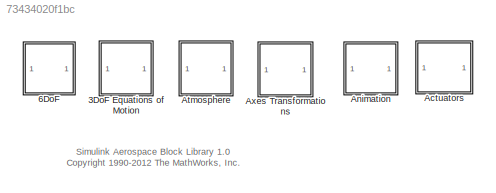
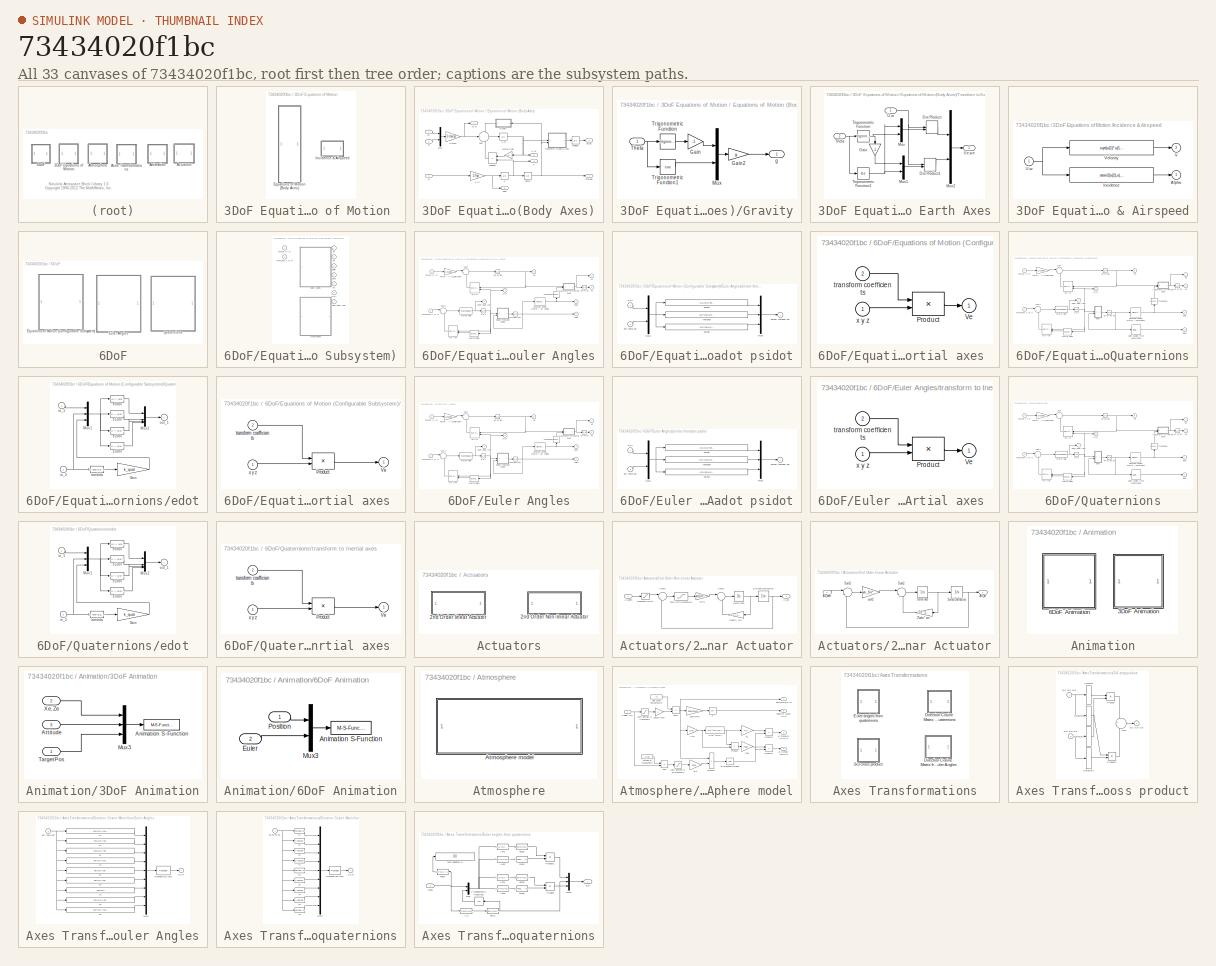
[diagram: thumbnail index - all 33 canvases of the model, root first then tree order]
MODEL slx_73434020f1bc
KIND library
CONFIG AbsTol = auto
CONFIG EnableMultiTasking = off
CONFIG FixedStep = auto
CONFIG MaxStep = auto
CONFIG MinStep = auto
CONFIG RelTol = 1e-3
CONFIG SampleTimeConstraint = Unconstrained
CONFIG SolverName = ode45
CONFIG StartTime = 0.0
CONFIG StopTime = 10.0
BLOCK [SubSystem] 3DoF Equations of Motion 
BLOCK [SubSystem] 3DoF Equations of Motion / Equations of Motion (Body Axes)
BLOCK [Gain] 3DoF Equations of Motion / Equations of Motion (Body Axes)/1//Iyy
  Gain = 1/Iyy
  OutDataTypeStr = Inherit: Same as input
  ParamDataTypeStr = Inherit: Same as input
  SaturateOnIntegerOverflow = on
BLOCK [Gain] 3DoF Equations of Motion / Equations of Motion (Body Axes)/1//mass
  Gain = 1/mass
  OutDataTypeStr = Inherit: Same as input
  ParamDataTypeStr = Inherit: Same as input
  SaturateOnIntegerOverflow = on
BLOCK [Outport] 3DoF Equations of Motion / Equations of Motion (Body Axes)/Attitude
  InitialOutput = 0
  VectorParamsAs1DForOutWhenUnconnected = off
BLOCK [Outport] 3DoF Equations of Motion / Equations of Motion (Body Axes)/Ax,Az
  InitialOutput = 0
  Port = 6
  VectorParamsAs1DForOutWhenUnconnected = off
BLOCK [Inport] 3DoF Equations of Motion / Equations of Motion (Body Axes)/Fx
BLOCK [Inport] 3DoF Equations of Motion / Equations of Motion (Body Axes)/Fz
  Port = 2
BLOCK [SubSystem] 3DoF Equations of Motion / Equations of Motion (Body Axes)/Gravity
BLOCK [Gain] 3DoF Equations of Motion / Equations of Motion (Body Axes)/Gravity/Gain
  Gain = -1
  NameLocation = top
  OutDataTypeStr = Inherit: Same as input
  ParamDataTypeStr = Inherit: Same as input
  SaturateOnIntegerOverflow = on
BLOCK [Gain] 3DoF Equations of Motion / Equations of Motion (Body Axes)/Gravity/Gain2
  Gain = g
  NameLocation = top
  OutDataTypeStr = Inherit: Same as input
  ParamDataTypeStr = Inherit: Same as input
  SaturateOnIntegerOverflow = on
BLOCK [Mux] 3DoF Equations of Motion / Equations of Motion (Body Axes)/Gravity/Mux
  DisplayOption = bar
  Inputs = 2
BLOCK [Inport] 3DoF Equations of Motion / Equations of Motion (Body Axes)/Gravity/Theta
BLOCK [Trigonometry] 3DoF Equations of Motion / Equations of Motion (Body Axes)/Gravity/Trigonometric Function
BLOCK [Trigonometry] 3DoF Equations of Motion / Equations of Motion (Body Axes)/Gravity/Trigonometric Function1
  Operator = cos
BLOCK [Outport] 3DoF Equations of Motion / Equations of Motion (Body Axes)/Gravity/g
  VectorParamsAs1DForOutWhenUnconnected = off
BLOCK [Inport] 3DoF Equations of Motion / Equations of Motion (Body Axes)/M
  Port = 3
BLOCK [Gain] 3DoF Equations of Motion / Equations of Motion (Body Axes)/Matrix Gain
  Gain = [0 -1;1 0]
  Multiplication = Matrix(K*u)
  OutDataTypeStr = Inherit: Same as input
  ParamDataTypeStr = Inherit: Same as input
  SaturateOnIntegerOverflow = on
BLOCK [Mux] 3DoF Equations of Motion / Equations of Motion (Body Axes)/Mux
  DisplayOption = bar
  Inputs = 2
BLOCK [Integrator] 3DoF Equations of Motion / Equations of Motion (Body Axes)/Position
  InitialCondition = pos_ini
BLOCK [Product] 3DoF Equations of Motion / Equations of Motion (Body Axes)/Product
  InputSameDT = on
  OutDataTypeStr = Inherit: Same as first input
  RndMeth = Zero
  SaturateOnIntegerOverflow = on
BLOCK [Sum] 3DoF Equations of Motion / Equations of Motion (Body Axes)/Sum
  InputSameDT = on
  Inputs = +++
  OutDataTypeStr = Inherit: Same as first input
  SaturateOnIntegerOverflow = on
BLOCK [Integrator] 3DoF Equations of Motion / Equations of Motion (Body Axes)/Theta
  InitialCondition = theta_ini
BLOCK [SubSystem] 3DoF Equations of Motion / Equations of Motion (Body Axes)/Transform to Earth Axes
BLOCK [DotProduct] 3DoF Equations of Motion / Equations of Motion (Body Axes)/Transform to Earth Axes/Dot Product
  OutDataTypeStr = Inherit: Inherit via internal rule
BLOCK [DotProduct] 3DoF Equations of Motion / Equations of Motion (Body Axes)/Transform to Earth Axes/Dot Product1
  OutDataTypeStr = Inherit: Inherit via internal rule
BLOCK [Gain] 3DoF Equations of Motion / Equations of Motion (Body Axes)/Transform to Earth Axes/Gain
  Gain = -1
  NameLocation = left
  OutDataTypeStr = Inherit: Same as input
  ParamDataTypeStr = Inherit: Same as input
  SaturateOnIntegerOverflow = on
BLOCK [Mux] 3DoF Equations of Motion / Equations of Motion (Body Axes)/Transform to Earth Axes/Mux
  DisplayOption = bar
  Inputs = 2
BLOCK [Mux] 3DoF Equations of Motion / Equations of Motion (Body Axes)/Transform to Earth Axes/Mux1
  DisplayOption = bar
  Inputs = 2
BLOCK [Mux] 3DoF Equations of Motion / Equations of Motion (Body Axes)/Transform to Earth Axes/Mux2
  DisplayOption = bar
  Inputs = 2
BLOCK [Inport] 3DoF Equations of Motion / Equations of Motion (Body Axes)/Transform to Earth Axes/Theta
  Port = 2
BLOCK [Trigonometry] 3DoF Equations of Motion / Equations of Motion (Body Axes)/Transform to Earth Axes/Trigonometric Function
BLOCK [Trigonometry] 3DoF Equations of Motion / Equations of Motion (Body Axes)/Transform to Earth Axes/Trigonometric Function1
  Operator = cos
BLOCK [Inport] 3DoF Equations of Motion / Equations of Motion (Body Axes)/Transform to Earth Axes/U,w
BLOCK [Outport] 3DoF Equations of Motion / Equations of Motion (Body Axes)/Transform to Earth Axes/Ue,we
  VectorParamsAs1DForOutWhenUnconnected = off
BLOCK [Integrator] 3DoF Equations of Motion / Equations of Motion (Body Axes)/U,w
  InitialCondition = [U0 w0]
BLOCK [Outport] 3DoF Equations of Motion / Equations of Motion (Body Axes)/U,w 
  InitialOutput = 0
  NameLocation = top
  Port = 5
  VectorParamsAs1DForOutWhenUnconnected = off
BLOCK [Outport] 3DoF Equations of Motion / Equations of Motion (Body Axes)/Xe,Ze
  InitialOutput = 0
  Port = 4
  VectorParamsAs1DForOutWhenUnconnected = off
BLOCK [Integrator] 3DoF Equations of Motion / Equations of Motion (Body Axes)/q
  InitialCondition = q_ini
BLOCK [Outport] 3DoF Equations of Motion / Equations of Motion (Body Axes)/q 
  InitialOutput = 0
  Port = 2
  VectorParamsAs1DForOutWhenUnconnected = off
BLOCK [Outport] 3DoF Equations of Motion / Equations of Motion (Body Axes)/qdot
  InitialOutput = 0
  Port = 3
  VectorParamsAs1DForOutWhenUnconnected = off
BLOCK [SubSystem] 3DoF Equations of Motion /Incidence & Airspeed
BLOCK [Outport] 3DoF Equations of Motion /Incidence & Airspeed/Alpha
  InitialOutput = 0
  VectorParamsAs1DForOutWhenUnconnected = off
BLOCK [Fcn] 3DoF Equations of Motion /Incidence & Airspeed/Incidence
  Expr = atan2(u(2),u(1))
BLOCK [Inport] 3DoF Equations of Motion /Incidence & Airspeed/U,w
BLOCK [Outport] 3DoF Equations of Motion /Incidence & Airspeed/V
  InitialOutput = 0
  Port = 2
  VectorParamsAs1DForOutWhenUnconnected = off
BLOCK [Fcn] 3DoF Equations of Motion /Incidence & Airspeed/Velocity
  Expr = sqrt(u(1)*u(1)+u(2)*u(2))
BLOCK [SubSystem] 6DoF
BLOCK [SubSystem] 6DoF/Equations of Motion (Configurable Subsystem)
  AttributesFormatString = %<BlockChoice>
  LabelModeActiveChoice = Euler Angles
  Variant = on
  VariantControlMode = label
BLOCK [Outport] 6DoF/Equations of Motion (Configurable Subsystem)/DCM
  Port = 4
  VectorParamsAs1DForOutWhenUnconnected = off
BLOCK [Outport] 6DoF/Equations of Motion (Configurable Subsystem)/Euler
  Port = 3
  VectorParamsAs1DForOutWhenUnconnected = off
BLOCK [SubSystem] 6DoF/Equations of Motion (Configurable Subsystem)/Euler Angles
  VariantControl = Euler Angles
BLOCK [Outport] 6DoF/Equations of Motion (Configurable Subsystem)/Euler Angles/DCM
  InitialOutput = 0
  Port = 4
  VectorParamsAs1DForOutWhenUnconnected = off
BLOCK [Reference] 6DoF/Equations of Motion (Configurable Subsystem)/Euler Angles/Direction Cosine Matrix from Euler Angles  REF=$bdroot/Axes
Transformations/Direction Cosine Matrix
from Euler Angles
  SourceBlock = $bdroot/Axes\nTransformations/Direction Cosine Matrix\nfrom Euler Angles
  SourceType = Direction Cosine Matrix
BLOCK [Outport] 6DoF/Equations of Motion (Configurable Subsystem)/Euler Angles/Euler
  InitialOutput = 0
  Port = 3
  VectorParamsAs1DForOutWhenUnconnected = off
BLOCK [Gain] 6DoF/Equations of Motion (Configurable Subsystem)/Euler Angles/Force ---> Acceleration
  Gain = 1/Mass
  OutDataTypeStr = Inherit: Same as input
  ParamDataTypeStr = Inherit: Same as input
  SaturateOnIntegerOverflow = on
BLOCK [Inport] 6DoF/Equations of Motion (Configurable Subsystem)/Euler Angles/Forces X Y Z
BLOCK [StateSpace] 6DoF/Equations of Motion (Configurable Subsystem)/Euler Angles/Matrix Gain
  A = []
  B = []
  C = []
  D = K
  InitialCondition = 0
BLOCK [StateSpace] 6DoF/Equations of Motion (Configurable Subsystem)/Euler Angles/Matrix Gain1
  A = []
  B = []
  C = []
  D = K
  InitialCondition = 0
BLOCK [Inport] 6DoF/Equations of Motion (Configurable Subsystem)/Euler Angles/Moments L M N
  Port = 2
BLOCK [Math] 6DoF/Equations of Motion (Configurable Subsystem)/Euler Angles/Transpose
  NameLocation = left
  Operator = transpose
  SignedPower = on
BLOCK [Outport] 6DoF/Equations of Motion (Configurable Subsystem)/Euler Angles/Vb
  InitialOutput = 0
  Port = 5
  VectorParamsAs1DForOutWhenUnconnected = off
BLOCK [Reference] 6DoF/Equations of Motion (Configurable Subsystem)/Euler Angles/Vb x w  REF=$bdroot/Axes
Transformations/3x3 cross product
  SourceBlock = $bdroot/Axes\nTransformations/3x3 cross product
  SourceType = Cross Product
BLOCK [Outport] 6DoF/Equations of Motion (Configurable Subsystem)/Euler Angles/Ve
  InitialOutput = 0
  VectorParamsAs1DForOutWhenUnconnected = off
BLOCK [Outport] 6DoF/Equations of Motion (Configurable Subsystem)/Euler Angles/Xe
  InitialOutput = 0
  Port = 2
  VectorParamsAs1DForOutWhenUnconnected = off
BLOCK [Integrator] 6DoF/Equations of Motion (Configurable Subsystem)/Euler Angles/p q r
  InitialCondition = pm_0
BLOCK [Outport] 6DoF/Equations of Motion (Configurable Subsystem)/Euler Angles/p,q,r
  InitialOutput = 0
  Port = 6
  VectorParamsAs1DForOutWhenUnconnected = off
BLOCK [Outport] 6DoF/Equations of Motion (Configurable Subsystem)/Euler Angles/pdot,qdot,rdot
  InitialOutput = 0
  Port = 7
  VectorParamsAs1DForOutWhenUnconnected = off
BLOCK [Integrator] 6DoF/Equations of Motion (Configurable Subsystem)/Euler Angles/phi theta psi
  InitialCondition = eul_0
BLOCK [SubSystem] 6DoF/Equations of Motion (Configurable Subsystem)/Euler Angles/phidot thetadot psidot
  ShowPortLabels = none
BLOCK [Mux] 6DoF/Equations of Motion (Configurable Subsystem)/Euler Angles/phidot thetadot psidot/Mux1
  DisplayOption = bar
  Inputs = [3 3]
BLOCK [Mux] 6DoF/Equations of Motion (Configurable Subsystem)/Euler Angles/phidot thetadot psidot/Mux2
  DisplayOption = bar
  Inputs = 3
BLOCK [Inport] 6DoF/Equations of Motion (Configurable Subsystem)/Euler Angles/phidot thetadot psidot/p q r
BLOCK [Inport] 6DoF/Equations of Motion (Configurable Subsystem)/Euler Angles/phidot thetadot psidot/phi theta psi
  Port = 2
BLOCK [Fcn] 6DoF/Equations of Motion (Configurable Subsystem)/Euler Angles/phidot thetadot psidot/phidot
  Expr = u[1]+u[2]*sin(u[4])*tan(u[5])+u[3]*cos(u[4])*tan(u[5])
BLOCK [Outport] 6DoF/Equations of Motion (Configurable Subsystem)/Euler Angles/phidot thetadot psidot/phidot thetadot psi
  InitialOutput = 0
  VectorParamsAs1DForOutWhenUnconnected = off
BLOCK [Fcn] 6DoF/Equations of Motion (Configurable Subsystem)/Euler Angles/phidot thetadot psidot/psidot
  Expr = u[2]*sin(u[4])/cos(u[5])+u[3]*cos(u[4])/cos(u[5])
BLOCK [Fcn] 6DoF/Equations of Motion (Configurable Subsystem)/Euler Angles/phidot thetadot psidot/thetadot
  Expr = u[2]*cos(u[4])-u[3]*sin(u[4])
BLOCK [Sum] 6DoF/Equations of Motion (Configurable Subsystem)/Euler Angles/sum
  InputSameDT = on
  Inputs = |++
  OutDataTypeStr = Inherit: Same as first input
  SaturateOnIntegerOverflow = on
BLOCK [Sum] 6DoF/Equations of Motion (Configurable Subsystem)/Euler Angles/sum1
  InputSameDT = on
  Inputs = |+-
  OutDataTypeStr = Inherit: Same as first input
  SaturateOnIntegerOverflow = on
BLOCK [SubSystem] 6DoF/Equations of Motion (Configurable Subsystem)/Euler Angles/transform to Inertial axes 
  ShowPortLabels = none
BLOCK [Product] 6DoF/Equations of Motion (Configurable Subsystem)/Euler Angles/transform to Inertial axes /Product
  InputSameDT = on
  Multiplication = Matrix(*)
  OutDataTypeStr = Inherit: Same as first input
  RndMeth = Zero
  SaturateOnIntegerOverflow = on
BLOCK [Outport] 6DoF/Equations of Motion (Configurable Subsystem)/Euler Angles/transform to Inertial axes /Ve
  InitialOutput = 0
  VectorParamsAs1DForOutWhenUnconnected = off
BLOCK [Inport] 6DoF/Equations of Motion (Configurable Subsystem)/Euler Angles/transform to Inertial axes /transform coefficients
  Port = 2
BLOCK [Inport] 6DoF/Equations of Motion (Configurable Subsystem)/Euler Angles/transform to Inertial axes /x y z
BLOCK [Integrator] 6DoF/Equations of Motion (Configurable Subsystem)/Euler Angles/ub vb wb
  InitialCondition = Vm_0
BLOCK [Reference] 6DoF/Equations of Motion (Configurable Subsystem)/Euler Angles/w x (Iw)  REF=$bdroot/Axes
Transformations/3x3 cross product
  SourceBlock = $bdroot/Axes\nTransformations/3x3 cross product
  SourceType = Cross Product
BLOCK [Integrator] 6DoF/Equations of Motion (Configurable Subsystem)/Euler Angles/xe ye ze
  InitialCondition = xme_0
BLOCK [Inport] 6DoF/Equations of Motion (Configurable Subsystem)/Forces X Y Z
BLOCK [Inport] 6DoF/Equations of Motion (Configurable Subsystem)/Moments L M N
  Port = 2
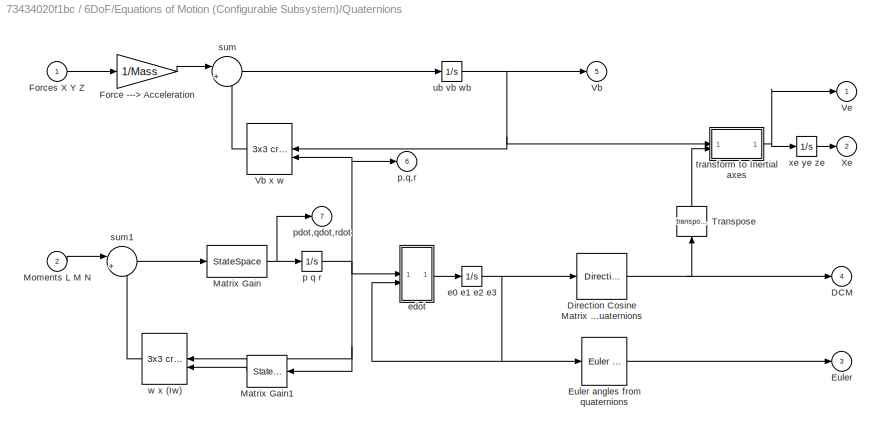
BLOCK [SubSystem] 6DoF/Equations of Motion (Configurable Subsystem)/Quaternions
  VariantControl = Quaternions
BLOCK [Outport] 6DoF/Equations of Motion (Configurable Subsystem)/Quaternions/DCM
  InitialOutput = 0
  Port = 4
  VectorParamsAs1DForOutWhenUnconnected = off
BLOCK [Reference] 6DoF/Equations of Motion (Configurable Subsystem)/Quaternions/Direction Cosine Matrix from quaternions  REF=$bdroot/Axes
Transformations/Direction Cosine Matrix
from quaternions
  SourceBlock = $bdroot/Axes\nTransformations/Direction Cosine Matrix\nfrom quaternions
  SourceType = Direction Cosine Matrix
BLOCK [Outport] 6DoF/Equations of Motion (Configurable Subsystem)/Quaternions/Euler
  InitialOutput = 0
  Port = 3
  VectorParamsAs1DForOutWhenUnconnected = off
BLOCK [Reference] 6DoF/Equations of Motion (Configurable Subsystem)/Quaternions/Euler angles from quaternions  REF=$bdroot/Axes
Transformations/Euler angles
from quaternions
  SourceBlock = $bdroot/Axes\nTransformations/Euler angles\nfrom quaternions
  SourceType = Euler angles
BLOCK [Gain] 6DoF/Equations of Motion (Configurable Subsystem)/Quaternions/Force ---> Acceleration
  Gain = 1/Mass
  OutDataTypeStr = Inherit: Same as input
  ParamDataTypeStr = Inherit: Same as input
  SaturateOnIntegerOverflow = on
BLOCK [Inport] 6DoF/Equations of Motion (Configurable Subsystem)/Quaternions/Forces X Y Z
BLOCK [StateSpace] 6DoF/Equations of Motion (Configurable Subsystem)/Quaternions/Matrix Gain
  A = []
  B = []
  C = []
  D = K
  InitialCondition = 0
BLOCK [StateSpace] 6DoF/Equations of Motion (Configurable Subsystem)/Quaternions/Matrix Gain1
  A = []
  B = []
  C = []
  D = K
  InitialCondition = 0
BLOCK [Inport] 6DoF/Equations of Motion (Configurable Subsystem)/Quaternions/Moments L M N
  Port = 2
BLOCK [Math] 6DoF/Equations of Motion (Configurable Subsystem)/Quaternions/Transpose
  NameLocation = right
  Operator = transpose
  SignedPower = on
BLOCK [Outport] 6DoF/Equations of Motion (Configurable Subsystem)/Quaternions/Vb
  InitialOutput = 0
  Port = 5
  VectorParamsAs1DForOutWhenUnconnected = off
BLOCK [Reference] 6DoF/Equations of Motion (Configurable Subsystem)/Quaternions/Vb x w  REF=$bdroot/Axes
Transformations/3x3 cross product
  SourceBlock = $bdroot/Axes\nTransformations/3x3 cross product
  SourceType = Cross Product
BLOCK [Outport] 6DoF/Equations of Motion (Configurable Subsystem)/Quaternions/Ve
  InitialOutput = 0
  VectorParamsAs1DForOutWhenUnconnected = off
BLOCK [Outport] 6DoF/Equations of Motion (Configurable Subsystem)/Quaternions/Xe
  InitialOutput = 0
  Port = 2
  VectorParamsAs1DForOutWhenUnconnected = off
BLOCK [Integrator] 6DoF/Equations of Motion (Configurable Subsystem)/Quaternions/e0 e1 e2 e3
  InitialCondition = [e0_0 e1_0 e2_0 e3_0]
BLOCK [SubSystem] 6DoF/Equations of Motion (Configurable Subsystem)/Quaternions/edot
  ShowPortLabels = none
BLOCK [Gain] 6DoF/Equations of Motion (Configurable Subsystem)/Quaternions/edot/Gain
  Gain = k_quat
  OutDataTypeStr = Inherit: Same as input
  ParamDataTypeStr = Inherit: Same as input
  SaturateOnIntegerOverflow = on
BLOCK [Mux] 6DoF/Equations of Motion (Configurable Subsystem)/Quaternions/edot/Mux1
  DisplayOption = bar
  Inputs = [3 4 1]
BLOCK [Mux] 6DoF/Equations of Motion (Configurable Subsystem)/Quaternions/edot/Mux2
  DisplayOption = bar
BLOCK [Fcn] 6DoF/Equations of Motion (Configurable Subsystem)/Quaternions/edot/e0dot
  Expr = -0.5 * ( u[5]*u[1]+u[6]*u[2]+u[7]*u[3] ) + u[8]*u[4]
BLOCK [Fcn] 6DoF/Equations of Motion (Configurable Subsystem)/Quaternions/edot/e1dot
  Expr = 0.5 * ( u[4]*u[1]+u[6]*u[3]-u[7]*u[2] ) + u[8]*u[5]
BLOCK [Fcn] 6DoF/Equations of Motion (Configurable Subsystem)/Quaternions/edot/e2dot
  Expr = 0.5 * ( u[4]*u[2]+u[7]*u[1]-u[5]*u[3] ) + u[8]*u[6]
BLOCK [Fcn] 6DoF/Equations of Motion (Configurable Subsystem)/Quaternions/edot/e3dot
  Expr = 0.5 * ( u[4]*u[3]+u[5]*u[2]-u[6]*u[1] ) + u[8]*u[7]
BLOCK [Inport] 6DoF/Equations of Motion (Configurable Subsystem)/Quaternions/edot/in_1
BLOCK [Inport] 6DoF/Equations of Motion (Configurable Subsystem)/Quaternions/edot/in_2
  Port = 2
BLOCK [Fcn] 6DoF/Equations of Motion (Configurable Subsystem)/Quaternions/edot/lambda
  Expr = 1-( pow(u[1],2) + pow(u[2],2) + pow(u[3],2) + pow(u[4],2) )
BLOCK [Outport] 6DoF/Equations of Motion (Configurable Subsystem)/Quaternions/edot/out_1
  InitialOutput = 0
  VectorParamsAs1DForOutWhenUnconnected = off
BLOCK [Integrator] 6DoF/Equations of Motion (Configurable Subsystem)/Quaternions/p q r
  InitialCondition = pm_0
BLOCK [Outport] 6DoF/Equations of Motion (Configurable Subsystem)/Quaternions/p,q,r
  InitialOutput = 0
  Port = 6
  VectorParamsAs1DForOutWhenUnconnected = off
BLOCK [Outport] 6DoF/Equations of Motion (Configurable Subsystem)/Quaternions/pdot,qdot,rdot
  InitialOutput = 0
  Port = 7
  VectorParamsAs1DForOutWhenUnconnected = off
BLOCK [Sum] 6DoF/Equations of Motion (Configurable Subsystem)/Quaternions/sum
  InputSameDT = on
  Inputs = |++
  OutDataTypeStr = Inherit: Same as first input
  SaturateOnIntegerOverflow = on
BLOCK [Sum] 6DoF/Equations of Motion (Configurable Subsystem)/Quaternions/sum1
  InputSameDT = on
  Inputs = |+-
  OutDataTypeStr = Inherit: Same as first input
  SaturateOnIntegerOverflow = on
BLOCK [SubSystem] 6DoF/Equations of Motion (Configurable Subsystem)/Quaternions/transform to Inertial axes 
  ShowPortLabels = none
BLOCK [Product] 6DoF/Equations of Motion (Configurable Subsystem)/Quaternions/transform to Inertial axes /Product
  InputSameDT = on
  Multiplication = Matrix(*)
  OutDataTypeStr = Inherit: Same as first input
  RndMeth = Zero
  SaturateOnIntegerOverflow = on
BLOCK [Outport] 6DoF/Equations of Motion (Configurable Subsystem)/Quaternions/transform to Inertial axes /Ve
  InitialOutput = 0
  VectorParamsAs1DForOutWhenUnconnected = off
BLOCK [Inport] 6DoF/Equations of Motion (Configurable Subsystem)/Quaternions/transform to Inertial axes /transform coefficients
  Port = 2
BLOCK [Inport] 6DoF/Equations of Motion (Configurable Subsystem)/Quaternions/transform to Inertial axes /x y z
BLOCK [Integrator] 6DoF/Equations of Motion (Configurable Subsystem)/Quaternions/ub vb wb
  InitialCondition = Vm_0
BLOCK [Reference] 6DoF/Equations of Motion (Configurable Subsystem)/Quaternions/w x (Iw)  REF=$bdroot/Axes
Transformations/3x3 cross product
  SourceBlock = $bdroot/Axes\nTransformations/3x3 cross product
  SourceType = Cross Product
BLOCK [Integrator] 6DoF/Equations of Motion (Configurable Subsystem)/Quaternions/xe ye ze
  InitialCondition = xme_0
BLOCK [Outport] 6DoF/Equations of Motion (Configurable Subsystem)/Vb
  Port = 5
  VectorParamsAs1DForOutWhenUnconnected = off
BLOCK [Outport] 6DoF/Equations of Motion (Configurable Subsystem)/Ve
  VectorParamsAs1DForOutWhenUnconnected = off
BLOCK [Outport] 6DoF/Equations of Motion (Configurable Subsystem)/Xe
  Port = 2
  VectorParamsAs1DForOutWhenUnconnected = off
BLOCK [Outport] 6DoF/Equations of Motion (Configurable Subsystem)/p,q,r
  Port = 6
  VectorParamsAs1DForOutWhenUnconnected = off
BLOCK [Outport] 6DoF/Equations of Motion (Configurable Subsystem)/pdot,qdot,rdot
  Port = 7
  VectorParamsAs1DForOutWhenUnconnected = off
BLOCK [SubSystem] 6DoF/Euler Angles
BLOCK [Outport] 6DoF/Euler Angles/DCM
  InitialOutput = 0
  Port = 4
  VectorParamsAs1DForOutWhenUnconnected = off
BLOCK [Reference] 6DoF/Euler Angles/Direction Cosine Matrix from Euler Angles  REF=$bdroot/Axes
Transformations/Direction Cosine Matrix
from Euler Angles
  SourceBlock = $bdroot/Axes\nTransformations/Direction Cosine Matrix\nfrom Euler Angles
  SourceType = Direction Cosine Matrix
BLOCK [Outport] 6DoF/Euler Angles/Euler
  InitialOutput = 0
  Port = 3
  VectorParamsAs1DForOutWhenUnconnected = off
BLOCK [Gain] 6DoF/Euler Angles/Force ---> Acceleration
  Gain = 1/Mass
  OutDataTypeStr = Inherit: Same as input
  ParamDataTypeStr = Inherit: Same as input
  SaturateOnIntegerOverflow = on
BLOCK [Inport] 6DoF/Euler Angles/Forces X Y Z
BLOCK [StateSpace] 6DoF/Euler Angles/Matrix Gain
  A = []
  B = []
  C = []
  D = K
  InitialCondition = 0
BLOCK [StateSpace] 6DoF/Euler Angles/Matrix Gain1
  A = []
  B = []
  C = []
  D = K
  InitialCondition = 0
BLOCK [Inport] 6DoF/Euler Angles/Moments L M N
  Port = 2
BLOCK [Math] 6DoF/Euler Angles/Transpose
  NameLocation = left
  Operator = transpose
  SignedPower = on
BLOCK [Outport] 6DoF/Euler Angles/Vb
  InitialOutput = 0
  Port = 5
  VectorParamsAs1DForOutWhenUnconnected = off
BLOCK [Reference] 6DoF/Euler Angles/Vb x w  REF=$bdroot/Axes
Transformations/3x3 cross product
  SourceBlock = $bdroot/Axes\nTransformations/3x3 cross product
  SourceType = Cross Product
BLOCK [Outport] 6DoF/Euler Angles/Ve
  InitialOutput = 0
  VectorParamsAs1DForOutWhenUnconnected = off
BLOCK [Outport] 6DoF/Euler Angles/Xe
  InitialOutput = 0
  Port = 2
  VectorParamsAs1DForOutWhenUnconnected = off
BLOCK [Integrator] 6DoF/Euler Angles/p q r
  InitialCondition = pm_0
BLOCK [Outport] 6DoF/Euler Angles/p,q,r
  InitialOutput = 0
  Port = 6
  VectorParamsAs1DForOutWhenUnconnected = off
BLOCK [Outport] 6DoF/Euler Angles/pdot,qdot,rdot
  InitialOutput = 0
  Port = 7
  VectorParamsAs1DForOutWhenUnconnected = off
BLOCK [Integrator] 6DoF/Euler Angles/phi theta psi
  InitialCondition = eul_0
BLOCK [SubSystem] 6DoF/Euler Angles/phidot thetadot psidot
  ShowPortLabels = none
BLOCK [Mux] 6DoF/Euler Angles/phidot thetadot psidot/Mux1
  DisplayOption = bar
  Inputs = [3 3]
BLOCK [Mux] 6DoF/Euler Angles/phidot thetadot psidot/Mux2
  DisplayOption = bar
  Inputs = 3
BLOCK [Inport] 6DoF/Euler Angles/phidot thetadot psidot/p q r
BLOCK [Inport] 6DoF/Euler Angles/phidot thetadot psidot/phi theta psi
  Port = 2
BLOCK [Fcn] 6DoF/Euler Angles/phidot thetadot psidot/phidot
  Expr = u[1]+u[2]*sin(u[4])*tan(u[5])+u[3]*cos(u[4])*tan(u[5])
BLOCK [Outport] 6DoF/Euler Angles/phidot thetadot psidot/phidot thetadot psi
  InitialOutput = 0
  VectorParamsAs1DForOutWhenUnconnected = off
BLOCK [Fcn] 6DoF/Euler Angles/phidot thetadot psidot/psidot
  Expr = u[2]*sin(u[4])/cos(u[5])+u[3]*cos(u[4])/cos(u[5])
BLOCK [Fcn] 6DoF/Euler Angles/phidot thetadot psidot/thetadot
  Expr = u[2]*cos(u[4])-u[3]*sin(u[4])
BLOCK [Sum] 6DoF/Euler Angles/sum
  InputSameDT = on
  Inputs = |++
  OutDataTypeStr = Inherit: Same as first input
  SaturateOnIntegerOverflow = on
BLOCK [Sum] 6DoF/Euler Angles/sum1
  InputSameDT = on
  Inputs = |+-
  OutDataTypeStr = Inherit: Same as first input
  SaturateOnIntegerOverflow = on
BLOCK [SubSystem] 6DoF/Euler Angles/transform to Inertial axes 
  ShowPortLabels = none
BLOCK [Product] 6DoF/Euler Angles/transform to Inertial axes /Product
  InputSameDT = on
  Multiplication = Matrix(*)
  OutDataTypeStr = Inherit: Same as first input
  RndMeth = Zero
  SaturateOnIntegerOverflow = on
BLOCK [Outport] 6DoF/Euler Angles/transform to Inertial axes /Ve
  InitialOutput = 0
  VectorParamsAs1DForOutWhenUnconnected = off
BLOCK [Inport] 6DoF/Euler Angles/transform to Inertial axes /transform coefficients
  Port = 2
BLOCK [Inport] 6DoF/Euler Angles/transform to Inertial axes /x y z
BLOCK [Integrator] 6DoF/Euler Angles/ub vb wb
  InitialCondition = Vm_0
BLOCK [Reference] 6DoF/Euler Angles/w x (Iw)  REF=$bdroot/Axes
Transformations/3x3 cross product
  SourceBlock = $bdroot/Axes\nTransformations/3x3 cross product
  SourceType = Cross Product
BLOCK [Integrator] 6DoF/Euler Angles/xe ye ze
  InitialCondition = xme_0
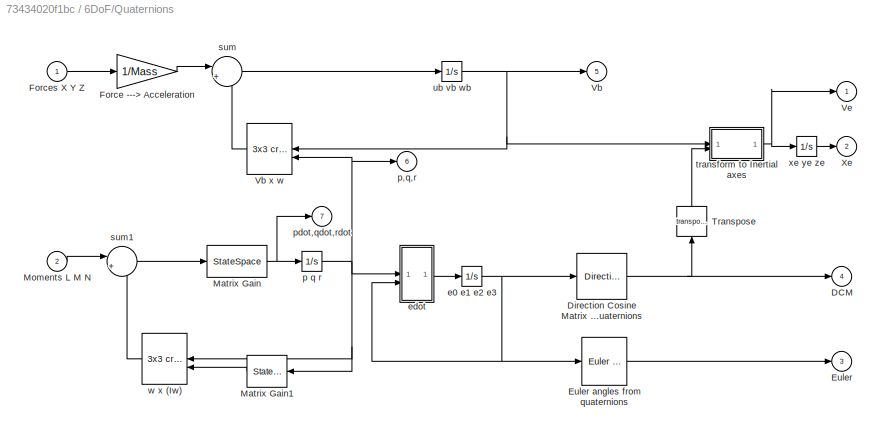
BLOCK [SubSystem] 6DoF/Quaternions
BLOCK [Outport] 6DoF/Quaternions/DCM
  InitialOutput = 0
  Port = 4
  VectorParamsAs1DForOutWhenUnconnected = off
BLOCK [Reference] 6DoF/Quaternions/Direction Cosine Matrix from quaternions  REF=$bdroot/Axes
Transformations/Direction Cosine Matrix
from quaternions
  SourceBlock = $bdroot/Axes\nTransformations/Direction Cosine Matrix\nfrom quaternions
  SourceType = Direction Cosine Matrix
BLOCK [Outport] 6DoF/Quaternions/Euler
  InitialOutput = 0
  Port = 3
  VectorParamsAs1DForOutWhenUnconnected = off
BLOCK [Reference] 6DoF/Quaternions/Euler angles from quaternions  REF=$bdroot/Axes
Transformations/Euler angles
from quaternions
  SourceBlock = $bdroot/Axes\nTransformations/Euler angles\nfrom quaternions
  SourceType = Euler angles
BLOCK [Gain] 6DoF/Quaternions/Force ---> Acceleration
  Gain = 1/Mass
  OutDataTypeStr = Inherit: Same as input
  ParamDataTypeStr = Inherit: Same as input
  SaturateOnIntegerOverflow = on
BLOCK [Inport] 6DoF/Quaternions/Forces X Y Z
BLOCK [StateSpace] 6DoF/Quaternions/Matrix Gain
  A = []
  B = []
  C = []
  D = K
  InitialCondition = 0
BLOCK [StateSpace] 6DoF/Quaternions/Matrix Gain1
  A = []
  B = []
  C = []
  D = K
  InitialCondition = 0
BLOCK [Inport] 6DoF/Quaternions/Moments L M N
  Port = 2
BLOCK [Math] 6DoF/Quaternions/Transpose
  NameLocation = right
  Operator = transpose
  SignedPower = on
BLOCK [Outport] 6DoF/Quaternions/Vb
  InitialOutput = 0
  Port = 5
  VectorParamsAs1DForOutWhenUnconnected = off
BLOCK [Reference] 6DoF/Quaternions/Vb x w  REF=$bdroot/Axes
Transformations/3x3 cross product
  SourceBlock = $bdroot/Axes\nTransformations/3x3 cross product
  SourceType = Cross Product
BLOCK [Outport] 6DoF/Quaternions/Ve
  InitialOutput = 0
  VectorParamsAs1DForOutWhenUnconnected = off
BLOCK [Outport] 6DoF/Quaternions/Xe
  InitialOutput = 0
  Port = 2
  VectorParamsAs1DForOutWhenUnconnected = off
BLOCK [Integrator] 6DoF/Quaternions/e0 e1 e2 e3
  InitialCondition = [e0_0 e1_0 e2_0 e3_0]
BLOCK [SubSystem] 6DoF/Quaternions/edot
  ShowPortLabels = none
BLOCK [Gain] 6DoF/Quaternions/edot/Gain
  Gain = k_quat
  OutDataTypeStr = Inherit: Same as input
  ParamDataTypeStr = Inherit: Same as input
  SaturateOnIntegerOverflow = on
BLOCK [Mux] 6DoF/Quaternions/edot/Mux1
  DisplayOption = bar
  Inputs = [3 4 1]
BLOCK [Mux] 6DoF/Quaternions/edot/Mux2
  DisplayOption = bar
BLOCK [Fcn] 6DoF/Quaternions/edot/e0dot
  Expr = -0.5 * ( u[5]*u[1]+u[6]*u[2]+u[7]*u[3] ) + u[8]*u[4]
BLOCK [Fcn] 6DoF/Quaternions/edot/e1dot
  Expr = 0.5 * ( u[4]*u[1]+u[6]*u[3]-u[7]*u[2] ) + u[8]*u[5]
BLOCK [Fcn] 6DoF/Quaternions/edot/e2dot
  Expr = 0.5 * ( u[4]*u[2]+u[7]*u[1]-u[5]*u[3] ) + u[8]*u[6]
BLOCK [Fcn] 6DoF/Quaternions/edot/e3dot
  Expr = 0.5 * ( u[4]*u[3]+u[5]*u[2]-u[6]*u[1] ) + u[8]*u[7]
BLOCK [Inport] 6DoF/Quaternions/edot/in_1
BLOCK [Inport] 6DoF/Quaternions/edot/in_2
  Port = 2
BLOCK [Fcn] 6DoF/Quaternions/edot/lambda
  Expr = 1-( pow(u[1],2) + pow(u[2],2) + pow(u[3],2) + pow(u[4],2) )
BLOCK [Outport] 6DoF/Quaternions/edot/out_1
  InitialOutput = 0
  VectorParamsAs1DForOutWhenUnconnected = off
BLOCK [Integrator] 6DoF/Quaternions/p q r
  InitialCondition = pm_0
BLOCK [Outport] 6DoF/Quaternions/p,q,r
  InitialOutput = 0
  Port = 6
  VectorParamsAs1DForOutWhenUnconnected = off
BLOCK [Outport] 6DoF/Quaternions/pdot,qdot,rdot
  InitialOutput = 0
  Port = 7
  VectorParamsAs1DForOutWhenUnconnected = off
BLOCK [Sum] 6DoF/Quaternions/sum
  InputSameDT = on
  Inputs = |++
  OutDataTypeStr = Inherit: Same as first input
  SaturateOnIntegerOverflow = on
BLOCK [Sum] 6DoF/Quaternions/sum1
  InputSameDT = on
  Inputs = |+-
  OutDataTypeStr = Inherit: Same as first input
  SaturateOnIntegerOverflow = on
BLOCK [SubSystem] 6DoF/Quaternions/transform to Inertial axes 
  ShowPortLabels = none
BLOCK [Product] 6DoF/Quaternions/transform to Inertial axes /Product
  InputSameDT = on
  Multiplication = Matrix(*)
  OutDataTypeStr = Inherit: Same as first input
  RndMeth = Zero
  SaturateOnIntegerOverflow = on
BLOCK [Outport] 6DoF/Quaternions/transform to Inertial axes /Ve
  InitialOutput = 0
  VectorParamsAs1DForOutWhenUnconnected = off
BLOCK [Inport] 6DoF/Quaternions/transform to Inertial axes /transform coefficients
  Port = 2
BLOCK [Inport] 6DoF/Quaternions/transform to Inertial axes /x y z
BLOCK [Integrator] 6DoF/Quaternions/ub vb wb
  InitialCondition = Vm_0
BLOCK [Reference] 6DoF/Quaternions/w x (Iw)  REF=$bdroot/Axes
Transformations/3x3 cross product
  SourceBlock = $bdroot/Axes\nTransformations/3x3 cross product
  SourceType = Cross Product
BLOCK [Integrator] 6DoF/Quaternions/xe ye ze
  InitialCondition = xme_0
BLOCK [SubSystem] Actuators
BLOCK [SubSystem] Actuators/2nd Order Non-linear Actuator
BLOCK [Gain] Actuators/2nd Order Non-linear Actuator/2*zeta * wn
  Gain = 2.0 * z_fin* wn_fin
  OutDataTypeStr = Inherit: Same as input
  ParamDataTypeStr = Inherit: Same as input
  SaturateOnIntegerOverflow = on
BLOCK [Outport] Actuators/2nd Order Non-linear Actuator/Ac_ac
  InitialOutput = 0
  VectorParamsAs1DForOutWhenUnconnected = off
BLOCK [Inport] Actuators/2nd Order Non-linear Actuator/Ac_dem
BLOCK [Saturate] Actuators/2nd Order Non-linear Actuator/Demand limits
  LowerLimit = fin_min
  UpperLimit = fin_max
BLOCK [Integrator] Actuators/2nd Order Non-linear Actuator/Limited Deflection
  InitialCondition = fin_act_0
  LimitOutput = on
  LowerSaturationLimit = fin_min
  UpperSaturationLimit = fin_max
BLOCK [Integrator] Actuators/2nd Order Non-linear Actuator/Servo rate
BLOCK [Sum] Actuators/2nd Order Non-linear Actuator/Sum2
  InputSameDT = on
  Inputs = |+-
  OutDataTypeStr = Inherit: Same as first input
  SaturateOnIntegerOverflow = on
BLOCK [Sum] Actuators/2nd Order Non-linear Actuator/Sum3
  InputSameDT = on
  Inputs = |+-
  OutDataTypeStr = Inherit: Same as first input
  SaturateOnIntegerOverflow = on
BLOCK [Saturate] Actuators/2nd Order Non-linear Actuator/rate limit*2*zeta//wn
  LowerLimit = -fin_maxrate*2*z_fin/wn_fin
  UpperLimit = fin_maxrate*2*z_fin/wn_fin
BLOCK [Gain] Actuators/2nd Order Non-linear Actuator/wn^2
  Gain = wn_fin* wn_fin
  OutDataTypeStr = Inherit: Same as input
  ParamDataTypeStr = Inherit: Same as input
  SaturateOnIntegerOverflow = on
BLOCK [SubSystem] Actuators/2nd Order linear Actuator
BLOCK [Gain] Actuators/2nd Order linear Actuator/2*zeta * wn
  Gain = 2.0 * z_fin* wn_fin
  OutDataTypeStr = Inherit: Same as input
  ParamDataTypeStr = Inherit: Same as input
  SaturateOnIntegerOverflow = on
BLOCK [Outport] Actuators/2nd Order linear Actuator/Ac_ac
  InitialOutput = 0
  VectorParamsAs1DForOutWhenUnconnected = off
BLOCK [Inport] Actuators/2nd Order linear Actuator/Ac_dem
BLOCK [Integrator] Actuators/2nd Order linear Actuator/Servo Deflection
  InitialCondition = fin_act_0
  LowerSaturationLimit = -Inf
  UpperSaturationLimit = Inf
BLOCK [Integrator] Actuators/2nd Order linear Actuator/Servo rate
BLOCK [Sum] Actuators/2nd Order linear Actuator/Sum2
  InputSameDT = on
  Inputs = |+-
  OutDataTypeStr = Inherit: Same as first input
  SaturateOnIntegerOverflow = on
BLOCK [Sum] Actuators/2nd Order linear Actuator/Sum3
  InputSameDT = on
  Inputs = |+-
  OutDataTypeStr = Inherit: Same as first input
  SaturateOnIntegerOverflow = on
BLOCK [Gain] Actuators/2nd Order linear Actuator/wn^2
  Gain = wn_fin* wn_fin
  OutDataTypeStr = Inherit: Same as input
  ParamDataTypeStr = Inherit: Same as input
  SaturateOnIntegerOverflow = on
BLOCK [SubSystem] Animation
BLOCK [SubSystem] Animation/3DoF Animation
BLOCK [M-S-Function] Animation/3DoF Animation/Animation S-Function
  FunctionName = sanim3dof
  Parameters = Config
BLOCK [Inport] Animation/3DoF Animation/Attitude
  Port = 3
BLOCK [Mux] Animation/3DoF Animation/Mux3
  Inputs = 3
BLOCK [Inport] Animation/3DoF Animation/TargetPos
BLOCK [Inport] Animation/3DoF Animation/Xe,Ze
  Port = 2
BLOCK [SubSystem] Animation/6DoF Animation
BLOCK [M-S-Function] Animation/6DoF Animation/Animation S-Function
  FunctionName = sanim
  Parameters = Config
BLOCK [Inport] Animation/6DoF Animation/Euler
  Port = 2
BLOCK [Mux] Animation/6DoF Animation/Mux3
  Inputs = 2
BLOCK [Inport] Animation/6DoF Animation/Position
BLOCK [SubSystem] Atmosphere
BLOCK [SubSystem] Atmosphere/Atmosphere model
BLOCK [Fcn] Atmosphere/Atmosphere model/(T//T0)^(g//LR)
  Expr = u(1)^(g/(L*R))
BLOCK [Gain] Atmosphere/Atmosphere model/1//T0
  Gain = 1/T0
  OutDataTypeStr = Inherit: Same as input
  ParamDataTypeStr = Inherit: Same as input
  SaturateOnIntegerOverflow = on
BLOCK [Outport] Atmosphere/Atmosphere model/Air Density (Kg//m^3)
  InitialOutput = 0
  Port = 4
  VectorParamsAs1DForOutWhenUnconnected = off
BLOCK [Outport] Atmosphere/Atmosphere model/Air Pressure (N//m^2) 
  InitialOutput = 0
  Port = 3
  VectorParamsAs1DForOutWhenUnconnected = off
BLOCK [Constant] Atmosphere/Atmosphere model/Altitude of Troposphere
  Value = h_trop
BLOCK [Inport] Atmosphere/Atmosphere model/Height (m)
BLOCK [Gain] Atmosphere/Atmosphere model/Lapse Rate
  Gain = L
  OutDataTypeStr = Inherit: Same as input
  ParamDataTypeStr = Inherit: Same as input
  SaturateOnIntegerOverflow = on
BLOCK [Saturate] Atmosphere/Atmosphere model/Limit altitude  to Stratosphere
  LowerLimit = h_trop-20000
  UpperLimit = 0
BLOCK [Saturate] Atmosphere/Atmosphere model/Limit altitude  to troposhere
  LowerLimit = 0
  UpperLimit = h_trop
BLOCK [Gain] Atmosphere/Atmosphere model/P0
  Gain = P0
  OutDataTypeStr = Inherit: Same as input
  ParamDataTypeStr = Inherit: Same as input
  SaturateOnIntegerOverflow = on
BLOCK [Product] Atmosphere/Atmosphere model/Product
  InputSameDT = on
  Inputs = */
  OutDataTypeStr = Inherit: Same as first input
  RndMeth = Zero
  SaturateOnIntegerOverflow = on
BLOCK [Product] Atmosphere/Atmosphere model/Product1
  InputSameDT = on
  Inputs = /*
  OutDataTypeStr = Inherit: Same as first input
  RndMeth = Zero
  SaturateOnIntegerOverflow = on
BLOCK [Product] Atmosphere/Atmosphere model/Product2
  InputSameDT = on
  OutDataTypeStr = Inherit: Same as first input
  RndMeth = Zero
  SaturateOnIntegerOverflow = on
BLOCK [Product] Atmosphere/Atmosphere model/Product3
  InputSameDT = on
  OutDataTypeStr = Inherit: Same as first input
  RndMeth = Zero
  SaturateOnIntegerOverflow = on
BLOCK [Constant] Atmosphere/Atmosphere model/Sea Level Temperature
  Value = T0
BLOCK [Outport] Atmosphere/Atmosphere model/Speed of Sound (m//s) 
  InitialOutput = 0
  Port = 2
  VectorParamsAs1DForOutWhenUnconnected = off
BLOCK [Math] Atmosphere/Atmosphere model/Stratosphere Model
  SignedPower = on
BLOCK [Sum] Atmosphere/Atmosphere model/Sum
  IconShape = rectangular
  InputSameDT = on
  Inputs = +-
  OutDataTypeStr = Inherit: Same as first input
  SaturateOnIntegerOverflow = on
BLOCK [Sum] Atmosphere/Atmosphere model/Sum1
  IconShape = rectangular
  InputSameDT = on
  Inputs = +-
  OutDataTypeStr = Inherit: Same as first input
  SaturateOnIntegerOverflow = on
BLOCK [Outport] Atmosphere/Atmosphere model/Temperature (K)
  InitialOutput = 0
  VectorParamsAs1DForOutWhenUnconnected = off
BLOCK [Math] Atmosphere/Atmosphere model/a
  Operator = sqrt
  SignedPower = on
BLOCK [Gain] Atmosphere/Atmosphere model/g//R
  Gain = g/R
  OutDataTypeStr = Inherit: Same as input
  ParamDataTypeStr = Inherit: Same as input
  SaturateOnIntegerOverflow = on
BLOCK [Gain] Atmosphere/Atmosphere model/gamma*R
  Gain = gamma*R
  OutDataTypeStr = Inherit: Same as input
  ParamDataTypeStr = Inherit: Same as input
  SaturateOnIntegerOverflow = on
BLOCK [Gain] Atmosphere/Atmosphere model/rho0
  Gain = rho0
  OutDataTypeStr = Inherit: Same as input
  ParamDataTypeStr = Inherit: Same as input
  SaturateOnIntegerOverflow = on
BLOCK [SubSystem] Axes Transformations
BLOCK [SubSystem] Axes Transformations/3x3 cross product
  ShowPortLabels = none
BLOCK [Product] Axes Transformations/3x3 cross product/Product
  InputSameDT = on
  OutDataTypeStr = Inherit: Same as first input
  RndMeth = Zero
  SaturateOnIntegerOverflow = on
BLOCK [Product] Axes Transformations/3x3 cross product/Product1
  InputSameDT = on
  OutDataTypeStr = Inherit: Same as first input
  RndMeth = Zero
  SaturateOnIntegerOverflow = on
BLOCK [Selector] Axes Transformations/3x3 cross product/Selector
  IndexOptions = Index vector (dialog)
  Indices = [2 3 1]
  InputPortWidth = 3
  OutputSizes = 1
BLOCK [Selector] Axes Transformations/3x3 cross product/Selector1
  IndexOptions = Index vector (dialog)
  Indices = [3 1 2]
  InputPortWidth = 3
  OutputSizes = 1
BLOCK [Selector] Axes Transformations/3x3 cross product/Selector2
  IndexOptions = Index vector (dialog)
  Indices = [2 3 1]
  InputPortWidth = 3
  OutputSizes = 1
BLOCK [Selector] Axes Transformations/3x3 cross product/Selector3
  IndexOptions = Index vector (dialog)
  Indices = [3 1 2]
  InputPortWidth = 3
  OutputSizes = 1
BLOCK [Sum] Axes Transformations/3x3 cross product/Sum
  InputSameDT = on
  Inputs = +|-
  OutDataTypeStr = Inherit: Same as first input
  SaturateOnIntegerOverflow = on
BLOCK [Inport] Axes Transformations/3x3 cross product/a(1) a(2) a(3)
BLOCK [Inport] Axes Transformations/3x3 cross product/b(1) b(2) b(3)
  Port = 2
BLOCK [Outport] Axes Transformations/3x3 cross product/c(1) c(2) c(3)
  InitialOutput = 0
  VectorParamsAs1DForOutWhenUnconnected = off
BLOCK [SubSystem] Axes Transformations/Direction Cosine Matrix from Euler Angles
  ShowPortLabels = none
BLOCK [Fcn] Axes Transformations/Direction Cosine Matrix from Euler Angles/11
  Expr = cos(u[3])*cos(u[2])
BLOCK [Fcn] Axes Transformations/Direction Cosine Matrix from Euler Angles/12
  Expr = sin(u[3])*cos(u[2])
BLOCK [Fcn] Axes Transformations/Direction Cosine Matrix from Euler Angles/13
  Expr = -sin(u[2])
BLOCK [Fcn] Axes Transformations/Direction Cosine Matrix from Euler Angles/21
  Expr = cos(u[3])*sin(u[2])*sin(u[1])-sin(u[3])*cos(u[1])
BLOCK [Fcn] Axes Transformations/Direction Cosine Matrix from Euler Angles/22
  Expr = sin(u[3])*sin(u[2])*sin(u[1])+cos(u[3])*cos(u[1])
BLOCK [Fcn] Axes Transformations/Direction Cosine Matrix from Euler Angles/23
  Expr = cos(u[2])*sin(u[1])
BLOCK [Fcn] Axes Transformations/Direction Cosine Matrix from Euler Angles/31
  Expr = cos(u[3])*sin(u[2])*cos(u[1])+sin(u[3])*sin(u[1])
BLOCK [Fcn] Axes Transformations/Direction Cosine Matrix from Euler Angles/32
  Expr = sin(u[3])*sin(u[2])*cos(u[1])-cos(u[3])*sin(u[1])
BLOCK [Fcn] Axes Transformations/Direction Cosine Matrix from Euler Angles/33
  Expr = cos(u[2])*cos(u[1])
BLOCK [Outport] Axes Transformations/Direction Cosine Matrix from Euler Angles/DCM
  InitialOutput = 0
  VectorParamsAs1DForOutWhenUnconnected = off
BLOCK [Mux] Axes Transformations/Direction Cosine Matrix from Euler Angles/Mux2
  DisplayOption = bar
  Inputs = 9
BLOCK [Reshape] Axes Transformations/Direction Cosine Matrix from Euler Angles/Reshape 9x1->3x3
  OutputDimensionality = Customize
  OutputDimensions = [3,3]
BLOCK [Inport] Axes Transformations/Direction Cosine Matrix from Euler Angles/phi theta psi
BLOCK [SubSystem] Axes Transformations/Direction Cosine Matrix from quaternions
  ShowPortLabels = none
BLOCK [Fcn] Axes Transformations/Direction Cosine Matrix from quaternions/11
  Expr = pow(u[1],2)+pow(u[2],2)-pow(u[3],2)-pow(u[4],2)
BLOCK [Fcn] Axes Transformations/Direction Cosine Matrix from quaternions/12
  Expr = 2*(u[2]*u[3] + u[1]*u[4])
BLOCK [Fcn] Axes Transformations/Direction Cosine Matrix from quaternions/13
  Expr = 2*(u[2]*u[4]-u[1]*u[3])
BLOCK [Fcn] Axes Transformations/Direction Cosine Matrix from quaternions/21
  Expr = 2*(u[2]*u[3]-u[1]*u[4])
BLOCK [Fcn] Axes Transformations/Direction Cosine Matrix from quaternions/22
  Expr = pow(u[1],2)-pow(u[2],2)+pow(u[3],2)-pow(u[4],2)
BLOCK [Fcn] Axes Transformations/Direction Cosine Matrix from quaternions/23
  Expr = 2*(u[3]*u[4]+u[1]*u[2])
BLOCK [Fcn] Axes Transformations/Direction Cosine Matrix from quaternions/31
  Expr = 2*(u[1]*u[3]+u[2]*u[4])
BLOCK [Fcn] Axes Transformations/Direction Cosine Matrix from quaternions/32
  Expr = 2*(u[3]*u[4]-u[1]*u[2])
BLOCK [Fcn] Axes Transformations/Direction Cosine Matrix from quaternions/33
  Expr = pow(u[1],2)-pow(u[2],2)-pow(u[3],2)+pow(u[4],2)
BLOCK [Outport] Axes Transformations/Direction Cosine Matrix from quaternions/DCM
  InitialOutput = 0
  VectorParamsAs1DForOutWhenUnconnected = off
BLOCK [Mux] Axes Transformations/Direction Cosine Matrix from quaternions/Mux2
  DisplayOption = bar
  Inputs = 9
BLOCK [Reshape] Axes Transformations/Direction Cosine Matrix from quaternions/Reshape 9x1->3x3
  BlockKeywords = __PRM__SERIALIZED__DATA__:convert,2D,Simulink:BlockKeywords:Math_Operations_Reshape_reshape,Simulink:BlockKeywords:Math_Operations_Reshape_convert
  OutputDimensionality = Customize
  OutputDimensions = [3,3]
BLOCK [Inport] Axes Transformations/Direction Cosine Matrix from quaternions/e0 e1 e2 e3
BLOCK [SubSystem] Axes Transformations/Euler angles from quaternions
BLOCK [Fcn] Axes Transformations/Euler angles from quaternions/Axx1
  Expr = (u(1)*u(1) - u(2)*u(2) - u(3)*u(3) + u(4)*u(4))/u(5)
BLOCK [Fcn] Axes Transformations/Euler angles from quaternions/Axx2
  Expr = u(3)*u(4)+u(1)*u(2)
BLOCK [Fcn] Axes Transformations/Euler angles from quaternions/Ay1
  Expr = -2*(u[2]*u[4]-u[1]*u[3])
BLOCK [Fcn] Axes Transformations/Euler angles from quaternions/Azz1
  Expr = (u(1)*u(1) + u(2)*u(2) - u(3)*u(3) - u(4)*u(4))/u(5)
BLOCK [Fcn] Axes Transformations/Euler angles from quaternions/Azz2
  Expr = u(2)*u(3)+u(1)*u(4)
BLOCK [Outport] Axes Transformations/Euler angles from quaternions/Eul
  InitialOutput = 0
  VectorParamsAs1DForOutWhenUnconnected = off
BLOCK [Mux] Axes Transformations/Euler angles from quaternions/Mux
  DisplayOption = bar
  Inputs = 2
BLOCK [Mux] Axes Transformations/Euler angles from quaternions/Mux1
  DisplayOption = bar
  Inputs = 3
BLOCK [Product] Axes Transformations/Euler angles from quaternions/Product
  InputSameDT = on
  OutDataTypeStr = Inherit: Same as first input
  RndMeth = Zero
  SaturateOnIntegerOverflow = on
BLOCK [Product] Axes Transformations/Euler angles from quaternions/Product1
  InputSameDT = on
  OutDataTypeStr = Inherit: Same as first input
  RndMeth = Zero
  SaturateOnIntegerOverflow = on
BLOCK [Inport] Axes Transformations/Euler angles from quaternions/Quat
BLOCK [Trigonometry] Axes Transformations/Euler angles from quaternions/Trigonometric Function1
  Operator = cos
BLOCK [Fcn] Axes Transformations/Euler angles from quaternions/acos1
  Expr = acos(u*(u<1)*(u>-1)+(u>=1)-(u<=-1))
BLOCK [Fcn] Axes Transformations/Euler angles from quaternions/acos2
  Expr = acos(u*(u<1)*(u>-1)+(u>=1)-(u<=-1))
BLOCK [Fcn] Axes Transformations/Euler angles from quaternions/asin1 
  Expr = asin(u*(u<1)*(u>-1)+(u>=1)-(u<=-1))
BLOCK [Fcn] Axes Transformations/Euler angles from quaternions/check
  Expr = u(1)*u(1) + u(2)*u(2) + u(3)*u(3) + u(4)*u(4)
BLOCK [Fcn] Axes Transformations/Euler angles from quaternions/sign1
  Expr = (u>eps) - (u<-eps)
BLOCK [Fcn] Axes Transformations/Euler angles from quaternions/sign2
  Expr = (u>eps) - (u<-eps)
BLOCK [Display] Axes Transformations/Euler angles from quaternions/sum squares =1
  Decimation = 1
  Format = long_e
  NameLocation = top
ANNOTATION (root): Simulink Aerospace Block Library 1.0 <copyright redacted>
NET 3DoF Equations of Motion / Equations of Motion (Body Axes)/1//Iyy:1 -> 3DoF Equations of Motion / Equations of Motion (Body Axes)/q:1, 3DoF Equations of Motion / Equations of Motion (Body Axes)/qdot:1
NET 3DoF Equations of Motion / Equations of Motion (Body Axes)/1//mass:1 -> 3DoF Equations of Motion / Equations of Motion (Body Axes)/Ax,Az:1, 3DoF Equations of Motion / Equations of Motion (Body Axes)/Sum:2
LINE 3DoF Equations of Motion / Equations of Motion (Body Axes)/Fx:1 -> 3DoF Equations of Motion / Equations of Motion (Body Axes)/Mux:1
LINE 3DoF Equations of Motion / Equations of Motion (Body Axes)/Fz:1 -> 3DoF Equations of Motion / Equations of Motion (Body Axes)/Mux:2
LINE 3DoF Equations of Motion / Equations of Motion (Body Axes)/Gravity/Gain2:1 -> 3DoF Equations of Motion / Equations of Motion (Body Axes)/Gravity/g:1
LINE 3DoF Equations of Motion / Equations of Motion (Body Axes)/Gravity/Gain:1 -> 3DoF Equations of Motion / Equations of Motion (Body Axes)/Gravity/Mux:1
LINE 3DoF Equations of Motion / Equations of Motion (Body Axes)/Gravity/Mux:1 -> 3DoF Equations of Motion / Equations of Motion (Body Axes)/Gravity/Gain2:1
NET 3DoF Equations of Motion / Equations of Motion (Body Axes)/Gravity/Theta:1 -> 3DoF Equations of Motion / Equations of Motion (Body Axes)/Gravity/Trigonometric Function1:1, 3DoF Equations of Motion / Equations of Motion (Body Axes)/Gravity/Trigonometric Function:1
LINE 3DoF Equations of Motion / Equations of Motion (Body Axes)/Gravity/Trigonometric Function1:1 -> 3DoF Equations of Motion / Equations of Motion (Body Axes)/Gravity/Mux:2
LINE 3DoF Equations of Motion / Equations of Motion (Body Axes)/Gravity/Trigonometric Function:1 -> 3DoF Equations of Motion / Equations of Motion (Body Axes)/Gravity/Gain:1
LINE 3DoF Equations of Motion / Equations of Motion (Body Axes)/Gravity:1 -> 3DoF Equations of Motion / Equations of Motion (Body Axes)/Sum:1
LINE 3DoF Equations of Motion / Equations of Motion (Body Axes)/M:1 -> 3DoF Equations of Motion / Equations of Motion (Body Axes)/1//Iyy:1
LINE 3DoF Equations of Motion / Equations of Motion (Body Axes)/Matrix Gain:1 -> 3DoF Equations of Motion / Equations of Motion (Body Axes)/Product:1
LINE 3DoF Equations of Motion / Equations of Motion (Body Axes)/Mux:1 -> 3DoF Equations of Motion / Equations of Motion (Body Axes)/1//mass:1
LINE 3DoF Equations of Motion / Equations of Motion (Body Axes)/Position:1 -> 3DoF Equations of Motion / Equations of Motion (Body Axes)/Xe,Ze:1
LINE 3DoF Equations of Motion / Equations of Motion (Body Axes)/Product:1 -> 3DoF Equations of Motion / Equations of Motion (Body Axes)/Sum:3
LINE 3DoF Equations of Motion / Equations of Motion (Body Axes)/Sum:1 -> 3DoF Equations of Motion / Equations of Motion (Body Axes)/U,w:1
NET 3DoF Equations of Motion / Equations of Motion (Body Axes)/Theta:1 -> 3DoF Equations of Motion / Equations of Motion (Body Axes)/Attitude:1, 3DoF Equations of Motion / Equations of Motion (Body Axes)/Gravity:1, 3DoF Equations of Motion / Equations of Motion (Body Axes)/Transform to Earth Axes:2
LINE 3DoF Equations of Motion / Equations of Motion (Body Axes)/Transform to Earth Axes/Dot Product1:1 -> 3DoF Equations of Motion / Equations of Motion (Body Axes)/Transform to Earth Axes/Mux2:2
LINE 3DoF Equations of Motion / Equations of Motion (Body Axes)/Transform to Earth Axes/Dot Product:1 -> 3DoF Equations of Motion / Equations of Motion (Body Axes)/Transform to Earth Axes/Mux2:1
LINE 3DoF Equations of Motion / Equations of Motion (Body Axes)/Transform to Earth Axes/Gain:1 -> 3DoF Equations of Motion / Equations of Motion (Body Axes)/Transform to Earth Axes/Mux1:1
LINE 3DoF Equations of Motion / Equations of Motion (Body Axes)/Transform to Earth Axes/Mux1:1 -> 3DoF Equations of Motion / Equations of Motion (Body Axes)/Transform to Earth Axes/Dot Product1:2
LINE 3DoF Equations of Motion / Equations of Motion (Body Axes)/Transform to Earth Axes/Mux2:1 -> 3DoF Equations of Motion / Equations of Motion (Body Axes)/Transform to Earth Axes/Ue,we:1
LINE 3DoF Equations of Motion / Equations of Motion (Body Axes)/Transform to Earth Axes/Mux:1 -> 3DoF Equations of Motion / Equations of Motion (Body Axes)/Transform to Earth Axes/Dot Product:2
NET 3DoF Equations of Motion / Equations of Motion (Body Axes)/Transform to Earth Axes/Theta:1 -> 3DoF Equations of Motion / Equations of Motion (Body Axes)/Transform to Earth Axes/Trigonometric Function1:1, 3DoF Equations of Motion / Equations of Motion (Body Axes)/Transform to Earth Axes/Trigonometric Function:1
NET 3DoF Equations of Motion / Equations of Motion (Body Axes)/Transform to Earth Axes/Trigonometric Function1:1 -> 3DoF Equations of Motion / Equations of Motion (Body Axes)/Transform to Earth Axes/Mux1:2, 3DoF Equations of Motion / Equations of Motion (Body Axes)/Transform to Earth Axes/Mux:1
NET 3DoF Equations of Motion / Equations of Motion (Body Axes)/Transform to Earth Axes/Trigonometric Function:1 -> 3DoF Equations of Motion / Equations of Motion (Body Axes)/Transform to Earth Axes/Gain:1, 3DoF Equations of Motion / Equations of Motion (Body Axes)/Transform to Earth Axes/Mux:2
NET 3DoF Equations of Motion / Equations of Motion (Body Axes)/Transform to Earth Axes/U,w:1 -> 3DoF Equations of Motion / Equations of Motion (Body Axes)/Transform to Earth Axes/Dot Product1:1, 3DoF Equations of Motion / Equations of Motion (Body Axes)/Transform to Earth Axes/Dot Product:1
LINE 3DoF Equations of Motion / Equations of Motion (Body Axes)/Transform to Earth Axes:1 -> 3DoF Equations of Motion / Equations of Motion (Body Axes)/Position:1
NET 3DoF Equations of Motion / Equations of Motion (Body Axes)/U,w:1 -> 3DoF Equations of Motion / Equations of Motion (Body Axes)/Matrix Gain:1, 3DoF Equations of Motion / Equations of Motion (Body Axes)/Transform to Earth Axes:1, 3DoF Equations of Motion / Equations of Motion (Body Axes)/U,w :1
NET 3DoF Equations of Motion / Equations of Motion (Body Axes)/q:1 -> 3DoF Equations of Motion / Equations of Motion (Body Axes)/Product:2, 3DoF Equations of Motion / Equations of Motion (Body Axes)/Theta:1, 3DoF Equations of Motion / Equations of Motion (Body Axes)/q :1
LINE 3DoF Equations of Motion /Incidence & Airspeed/Incidence:1 -> 3DoF Equations of Motion /Incidence & Airspeed/Alpha:1
NET 3DoF Equations of Motion /Incidence & Airspeed/U,w:1 -> 3DoF Equations of Motion /Incidence & Airspeed/Incidence:1, 3DoF Equations of Motion /Incidence & Airspeed/Velocity:1
LINE 3DoF Equations of Motion /Incidence & Airspeed/Velocity:1 -> 3DoF Equations of Motion /Incidence & Airspeed/V:1
NET 6DoF/Equations of Motion (Configurable Subsystem)/Euler Angles/Direction Cosine Matrix from Euler Angles:1 -> 6DoF/Equations of Motion (Configurable Subsystem)/Euler Angles/DCM:1, 6DoF/Equations of Motion (Configurable Subsystem)/Euler Angles/Transpose:1
LINE 6DoF/Equations of Motion (Configurable Subsystem)/Euler Angles/Force ---> Acceleration:1 -> 6DoF/Equations of Motion (Configurable Subsystem)/Euler Angles/sum:1
LINE 6DoF/Equations of Motion (Configurable Subsystem)/Euler Angles/Forces X Y Z:1 -> 6DoF/Equations of Motion (Configurable Subsystem)/Euler Angles/Force ---> Acceleration:1
LINE 6DoF/Equations of Motion (Configurable Subsystem)/Euler Angles/Matrix Gain1:1 -> 6DoF/Equations of Motion (Configurable Subsystem)/Euler Angles/w x (Iw):2
NET 6DoF/Equations of Motion (Configurable Subsystem)/Euler Angles/Matrix Gain:1 -> 6DoF/Equations of Motion (Configurable Subsystem)/Euler Angles/p q r:1, 6DoF/Equations of Motion (Configurable Subsystem)/Euler Angles/pdot,qdot,rdot:1
LINE 6DoF/Equations of Motion (Configurable Subsystem)/Euler Angles/Moments L M N:1 -> 6DoF/Equations of Motion (Configurable Subsystem)/Euler Angles/sum1:1
LINE 6DoF/Equations of Motion (Configurable Subsystem)/Euler Angles/Transpose:1 -> 6DoF/Equations of Motion (Configurable Subsystem)/Euler Angles/transform to Inertial axes :2
LINE 6DoF/Equations of Motion (Configurable Subsystem)/Euler Angles/Vb x w:1 -> 6DoF/Equations of Motion (Configurable Subsystem)/Euler Angles/sum:2
NET 6DoF/Equations of Motion (Configurable Subsystem)/Euler Angles/p q r:1 -> 6DoF/Equations of Motion (Configurable Subsystem)/Euler Angles/Matrix Gain1:1, 6DoF/Equations of Motion (Configurable Subsystem)/Euler Angles/Vb x w:2, 6DoF/Equations of Motion (Configurable Subsystem)/Euler Angles/p,q,r:1, 6DoF/Equations of Motion (Configurable Subsystem)/Euler Angles/phidot thetadot psidot:1, 6DoF/Equations of Motion (Configurable Subsystem)/Euler Angles/w x (Iw):1
NET 6DoF/Equations of Motion (Configurable Subsystem)/Euler Angles/phi theta psi:1 -> 6DoF/Equations of Motion (Configurable Subsystem)/Euler Angles/Direction Cosine Matrix from Euler Angles:1, 6DoF/Equations of Motion (Configurable Subsystem)/Euler Angles/Euler:1, 6DoF/Equations of Motion (Configurable Subsystem)/Euler Angles/phidot thetadot psidot:2
NET 6DoF/Equations of Motion (Configurable Subsystem)/Euler Angles/phidot thetadot psidot/Mux1:1 -> 6DoF/Equations of Motion (Configurable Subsystem)/Euler Angles/phidot thetadot psidot/phidot:1, 6DoF/Equations of Motion (Configurable Subsystem)/Euler Angles/phidot thetadot psidot/psidot:1, 6DoF/Equations of Motion (Configurable Subsystem)/Euler Angles/phidot thetadot psidot/thetadot:1
LINE 6DoF/Equations of Motion (Configurable Subsystem)/Euler Angles/phidot thetadot psidot/Mux2:1 -> 6DoF/Equations of Motion (Configurable Subsystem)/Euler Angles/phidot thetadot psidot/phidot thetadot psi:1
LINE 6DoF/Equations of Motion (Configurable Subsystem)/Euler Angles/phidot thetadot psidot/p q r:1 -> 6DoF/Equations of Motion (Configurable Subsystem)/Euler Angles/phidot thetadot psidot/Mux1:1
LINE 6DoF/Equations of Motion (Configurable Subsystem)/Euler Angles/phidot thetadot psidot/phi theta psi:1 -> 6DoF/Equations of Motion (Configurable Subsystem)/Euler Angles/phidot thetadot psidot/Mux1:2
LINE 6DoF/Equations of Motion (Configurable Subsystem)/Euler Angles/phidot thetadot psidot/phidot:1 -> 6DoF/Equations of Motion (Configurable Subsystem)/Euler Angles/phidot thetadot psidot/Mux2:1
LINE 6DoF/Equations of Motion (Configurable Subsystem)/Euler Angles/phidot thetadot psidot/psidot:1 -> 6DoF/Equations of Motion (Configurable Subsystem)/Euler Angles/phidot thetadot psidot/Mux2:3
LINE 6DoF/Equations of Motion (Configurable Subsystem)/Euler Angles/phidot thetadot psidot/thetadot:1 -> 6DoF/Equations of Motion (Configurable Subsystem)/Euler Angles/phidot thetadot psidot/Mux2:2
LINE 6DoF/Equations of Motion (Configurable Subsystem)/Euler Angles/phidot thetadot psidot:1 -> 6DoF/Equations of Motion (Configurable Subsystem)/Euler Angles/phi theta psi:1
LINE 6DoF/Equations of Motion (Configurable Subsystem)/Euler Angles/sum1:1 -> 6DoF/Equations of Motion (Configurable Subsystem)/Euler Angles/Matrix Gain:1
LINE 6DoF/Equations of Motion (Configurable Subsystem)/Euler Angles/sum:1 -> 6DoF/Equations of Motion (Configurable Subsystem)/Euler Angles/ub vb wb:1
LINE 6DoF/Equations of Motion (Configurable Subsystem)/Euler Angles/transform to Inertial axes /Product:1 -> 6DoF/Equations of Motion (Configurable Subsystem)/Euler Angles/transform to Inertial axes /Ve:1
LINE 6DoF/Equations of Motion (Configurable Subsystem)/Euler Angles/transform to Inertial axes /transform coefficients:1 -> 6DoF/Equations of Motion (Configurable Subsystem)/Euler Angles/transform to Inertial axes /Product:1
LINE 6DoF/Equations of Motion (Configurable Subsystem)/Euler Angles/transform to Inertial axes /x y z:1 -> 6DoF/Equations of Motion (Configurable Subsystem)/Euler Angles/transform to Inertial axes /Product:2
NET 6DoF/Equations of Motion (Configurable Subsystem)/Euler Angles/transform to Inertial axes :1 -> 6DoF/Equations of Motion (Configurable Subsystem)/Euler Angles/Ve:1, 6DoF/Equations of Motion (Configurable Subsystem)/Euler Angles/xe ye ze:1
NET 6DoF/Equations of Motion (Configurable Subsystem)/Euler Angles/ub vb wb:1 -> 6DoF/Equations of Motion (Configurable Subsystem)/Euler Angles/Vb x w:1, 6DoF/Equations of Motion (Configurable Subsystem)/Euler Angles/Vb:1, 6DoF/Equations of Motion (Configurable Subsystem)/Euler Angles/transform to Inertial axes :1
LINE 6DoF/Equations of Motion (Configurable Subsystem)/Euler Angles/w x (Iw):1 -> 6DoF/Equations of Motion (Configurable Subsystem)/Euler Angles/sum1:2
LINE 6DoF/Equations of Motion (Configurable Subsystem)/Euler Angles/xe ye ze:1 -> 6DoF/Equations of Motion (Configurable Subsystem)/Euler Angles/Xe:1
NET 6DoF/Equations of Motion (Configurable Subsystem)/Quaternions/Direction Cosine Matrix from quaternions:1 -> 6DoF/Equations of Motion (Configurable Subsystem)/Quaternions/DCM:1, 6DoF/Equations of Motion (Configurable Subsystem)/Quaternions/Transpose:1
LINE 6DoF/Equations of Motion (Configurable Subsystem)/Quaternions/Euler angles from quaternions:1 -> 6DoF/Equations of Motion (Configurable Subsystem)/Quaternions/Euler:1
LINE 6DoF/Equations of Motion (Configurable Subsystem)/Quaternions/Force ---> Acceleration:1 -> 6DoF/Equations of Motion (Configurable Subsystem)/Quaternions/sum:1
LINE 6DoF/Equations of Motion (Configurable Subsystem)/Quaternions/Forces X Y Z:1 -> 6DoF/Equations of Motion (Configurable Subsystem)/Quaternions/Force ---> Acceleration:1
LINE 6DoF/Equations of Motion (Configurable Subsystem)/Quaternions/Matrix Gain1:1 -> 6DoF/Equations of Motion (Configurable Subsystem)/Quaternions/w x (Iw):2
NET 6DoF/Equations of Motion (Configurable Subsystem)/Quaternions/Matrix Gain:1 -> 6DoF/Equations of Motion (Configurable Subsystem)/Quaternions/p q r:1, 6DoF/Equations of Motion (Configurable Subsystem)/Quaternions/pdot,qdot,rdot:1
LINE 6DoF/Equations of Motion (Configurable Subsystem)/Quaternions/Moments L M N:1 -> 6DoF/Equations of Motion (Configurable Subsystem)/Quaternions/sum1:1
LINE 6DoF/Equations of Motion (Configurable Subsystem)/Quaternions/Transpose:1 -> 6DoF/Equations of Motion (Configurable Subsystem)/Quaternions/transform to Inertial axes :2
LINE 6DoF/Equations of Motion (Configurable Subsystem)/Quaternions/Vb x w:1 -> 6DoF/Equations of Motion (Configurable Subsystem)/Quaternions/sum:2
NET 6DoF/Equations of Motion (Configurable Subsystem)/Quaternions/e0 e1 e2 e3:1 -> 6DoF/Equations of Motion (Configurable Subsystem)/Quaternions/Direction Cosine Matrix from quaternions:1, 6DoF/Equations of Motion (Configurable Subsystem)/Quaternions/Euler angles from quaternions:1, 6DoF/Equations of Motion (Configurable Subsystem)/Quaternions/edot:2
LINE 6DoF/Equations of Motion (Configurable Subsystem)/Quaternions/edot/Gain:1 -> 6DoF/Equations of Motion (Configurable Subsystem)/Quaternions/edot/Mux1:3
NET 6DoF/Equations of Motion (Configurable Subsystem)/Quaternions/edot/Mux1:1 -> 6DoF/Equations of Motion (Configurable Subsystem)/Quaternions/edot/e0dot:1, 6DoF/Equations of Motion (Configurable Subsystem)/Quaternions/edot/e1dot:1, 6DoF/Equations of Motion (Configurable Subsystem)/Quaternions/edot/e2dot:1, 6DoF/Equations of Motion (Configurable Subsystem)/Quaternions/edot/e3dot:1
LINE 6DoF/Equations of Motion (Configurable Subsystem)/Quaternions/edot/Mux2:1 -> 6DoF/Equations of Motion (Configurable Subsystem)/Quaternions/edot/out_1:1
LINE 6DoF/Equations of Motion (Configurable Subsystem)/Quaternions/edot/e0dot:1 -> 6DoF/Equations of Motion (Configurable Subsystem)/Quaternions/edot/Mux2:1
LINE 6DoF/Equations of Motion (Configurable Subsystem)/Quaternions/edot/e1dot:1 -> 6DoF/Equations of Motion (Configurable Subsystem)/Quaternions/edot/Mux2:2
LINE 6DoF/Equations of Motion (Configurable Subsystem)/Quaternions/edot/e2dot:1 -> 6DoF/Equations of Motion (Configurable Subsystem)/Quaternions/edot/Mux2:3
LINE 6DoF/Equations of Motion (Configurable Subsystem)/Quaternions/edot/e3dot:1 -> 6DoF/Equations of Motion (Configurable Subsystem)/Quaternions/edot/Mux2:4
LINE 6DoF/Equations of Motion (Configurable Subsystem)/Quaternions/edot/in_1:1 -> 6DoF/Equations of Motion (Configurable Subsystem)/Quaternions/edot/Mux1:1
NET 6DoF/Equations of Motion (Configurable Subsystem)/Quaternions/edot/in_2:1 -> 6DoF/Equations of Motion (Configurable Subsystem)/Quaternions/edot/Mux1:2, 6DoF/Equations of Motion (Configurable Subsystem)/Quaternions/edot/lambda:1
LINE 6DoF/Equations of Motion (Configurable Subsystem)/Quaternions/edot/lambda:1 -> 6DoF/Equations of Motion (Configurable Subsystem)/Quaternions/edot/Gain:1
LINE 6DoF/Equations of Motion (Configurable Subsystem)/Quaternions/edot:1 -> 6DoF/Equations of Motion (Configurable Subsystem)/Quaternions/e0 e1 e2 e3:1
NET 6DoF/Equations of Motion (Configurable Subsystem)/Quaternions/p q r:1 -> 6DoF/Equations of Motion (Configurable Subsystem)/Quaternions/Matrix Gain1:1, 6DoF/Equations of Motion (Configurable Subsystem)/Quaternions/Vb x w:2, 6DoF/Equations of Motion (Configurable Subsystem)/Quaternions/edot:1, 6DoF/Equations of Motion (Configurable Subsystem)/Quaternions/p,q,r:1, 6DoF/Equations of Motion (Configurable Subsystem)/Quaternions/w x (Iw):1
LINE 6DoF/Equations of Motion (Configurable Subsystem)/Quaternions/sum1:1 -> 6DoF/Equations of Motion (Configurable Subsystem)/Quaternions/Matrix Gain:1
LINE 6DoF/Equations of Motion (Configurable Subsystem)/Quaternions/sum:1 -> 6DoF/Equations of Motion (Configurable Subsystem)/Quaternions/ub vb wb:1
LINE 6DoF/Equations of Motion (Configurable Subsystem)/Quaternions/transform to Inertial axes /Product:1 -> 6DoF/Equations of Motion (Configurable Subsystem)/Quaternions/transform to Inertial axes /Ve:1
LINE 6DoF/Equations of Motion (Configurable Subsystem)/Quaternions/transform to Inertial axes /transform coefficients:1 -> 6DoF/Equations of Motion (Configurable Subsystem)/Quaternions/transform to Inertial axes /Product:1
LINE 6DoF/Equations of Motion (Configurable Subsystem)/Quaternions/transform to Inertial axes /x y z:1 -> 6DoF/Equations of Motion (Configurable Subsystem)/Quaternions/transform to Inertial axes /Product:2
NET 6DoF/Equations of Motion (Configurable Subsystem)/Quaternions/transform to Inertial axes :1 -> 6DoF/Equations of Motion (Configurable Subsystem)/Quaternions/Ve:1, 6DoF/Equations of Motion (Configurable Subsystem)/Quaternions/xe ye ze:1
NET 6DoF/Equations of Motion (Configurable Subsystem)/Quaternions/ub vb wb:1 -> 6DoF/Equations of Motion (Configurable Subsystem)/Quaternions/Vb x w:1, 6DoF/Equations of Motion (Configurable Subsystem)/Quaternions/Vb:1, 6DoF/Equations of Motion (Configurable Subsystem)/Quaternions/transform to Inertial axes :1
LINE 6DoF/Equations of Motion (Configurable Subsystem)/Quaternions/w x (Iw):1 -> 6DoF/Equations of Motion (Configurable Subsystem)/Quaternions/sum1:2
LINE 6DoF/Equations of Motion (Configurable Subsystem)/Quaternions/xe ye ze:1 -> 6DoF/Equations of Motion (Configurable Subsystem)/Quaternions/Xe:1
NET 6DoF/Euler Angles/Direction Cosine Matrix from Euler Angles:1 -> 6DoF/Euler Angles/DCM:1, 6DoF/Euler Angles/Transpose:1
LINE 6DoF/Euler Angles/Force ---> Acceleration:1 -> 6DoF/Euler Angles/sum:1
LINE 6DoF/Euler Angles/Forces X Y Z:1 -> 6DoF/Euler Angles/Force ---> Acceleration:1
LINE 6DoF/Euler Angles/Matrix Gain1:1 -> 6DoF/Euler Angles/w x (Iw):2
NET 6DoF/Euler Angles/Matrix Gain:1 -> 6DoF/Euler Angles/p q r:1, 6DoF/Euler Angles/pdot,qdot,rdot:1
LINE 6DoF/Euler Angles/Moments L M N:1 -> 6DoF/Euler Angles/sum1:1
LINE 6DoF/Euler Angles/Transpose:1 -> 6DoF/Euler Angles/transform to Inertial axes :2
LINE 6DoF/Euler Angles/Vb x w:1 -> 6DoF/Euler Angles/sum:2
NET 6DoF/Euler Angles/p q r:1 -> 6DoF/Euler Angles/Matrix Gain1:1, 6DoF/Euler Angles/Vb x w:2, 6DoF/Euler Angles/p,q,r:1, 6DoF/Euler Angles/phidot thetadot psidot:1, 6DoF/Euler Angles/w x (Iw):1
NET 6DoF/Euler Angles/phi theta psi:1 -> 6DoF/Euler Angles/Direction Cosine Matrix from Euler Angles:1, 6DoF/Euler Angles/Euler:1, 6DoF/Euler Angles/phidot thetadot psidot:2
NET 6DoF/Euler Angles/phidot thetadot psidot/Mux1:1 -> 6DoF/Euler Angles/phidot thetadot psidot/phidot:1, 6DoF/Euler Angles/phidot thetadot psidot/psidot:1, 6DoF/Euler Angles/phidot thetadot psidot/thetadot:1
LINE 6DoF/Euler Angles/phidot thetadot psidot/Mux2:1 -> 6DoF/Euler Angles/phidot thetadot psidot/phidot thetadot psi:1
LINE 6DoF/Euler Angles/phidot thetadot psidot/p q r:1 -> 6DoF/Euler Angles/phidot thetadot psidot/Mux1:1
LINE 6DoF/Euler Angles/phidot thetadot psidot/phi theta psi:1 -> 6DoF/Euler Angles/phidot thetadot psidot/Mux1:2
LINE 6DoF/Euler Angles/phidot thetadot psidot/phidot:1 -> 6DoF/Euler Angles/phidot thetadot psidot/Mux2:1
LINE 6DoF/Euler Angles/phidot thetadot psidot/psidot:1 -> 6DoF/Euler Angles/phidot thetadot psidot/Mux2:3
LINE 6DoF/Euler Angles/phidot thetadot psidot/thetadot:1 -> 6DoF/Euler Angles/phidot thetadot psidot/Mux2:2
LINE 6DoF/Euler Angles/phidot thetadot psidot:1 -> 6DoF/Euler Angles/phi theta psi:1
LINE 6DoF/Euler Angles/sum1:1 -> 6DoF/Euler Angles/Matrix Gain:1
LINE 6DoF/Euler Angles/sum:1 -> 6DoF/Euler Angles/ub vb wb:1
LINE 6DoF/Euler Angles/transform to Inertial axes /Product:1 -> 6DoF/Euler Angles/transform to Inertial axes /Ve:1
LINE 6DoF/Euler Angles/transform to Inertial axes /transform coefficients:1 -> 6DoF/Euler Angles/transform to Inertial axes /Product:1
LINE 6DoF/Euler Angles/transform to Inertial axes /x y z:1 -> 6DoF/Euler Angles/transform to Inertial axes /Product:2
NET 6DoF/Euler Angles/transform to Inertial axes :1 -> 6DoF/Euler Angles/Ve:1, 6DoF/Euler Angles/xe ye ze:1
NET 6DoF/Euler Angles/ub vb wb:1 -> 6DoF/Euler Angles/Vb x w:1, 6DoF/Euler Angles/Vb:1, 6DoF/Euler Angles/transform to Inertial axes :1
LINE 6DoF/Euler Angles/w x (Iw):1 -> 6DoF/Euler Angles/sum1:2
LINE 6DoF/Euler Angles/xe ye ze:1 -> 6DoF/Euler Angles/Xe:1
NET 6DoF/Quaternions/Direction Cosine Matrix from quaternions:1 -> 6DoF/Quaternions/DCM:1, 6DoF/Quaternions/Transpose:1
LINE 6DoF/Quaternions/Euler angles from quaternions:1 -> 6DoF/Quaternions/Euler:1
LINE 6DoF/Quaternions/Force ---> Acceleration:1 -> 6DoF/Quaternions/sum:1
LINE 6DoF/Quaternions/Forces X Y Z:1 -> 6DoF/Quaternions/Force ---> Acceleration:1
LINE 6DoF/Quaternions/Matrix Gain1:1 -> 6DoF/Quaternions/w x (Iw):2
NET 6DoF/Quaternions/Matrix Gain:1 -> 6DoF/Quaternions/p q r:1, 6DoF/Quaternions/pdot,qdot,rdot:1
LINE 6DoF/Quaternions/Moments L M N:1 -> 6DoF/Quaternions/sum1:1
LINE 6DoF/Quaternions/Transpose:1 -> 6DoF/Quaternions/transform to Inertial axes :2
LINE 6DoF/Quaternions/Vb x w:1 -> 6DoF/Quaternions/sum:2
NET 6DoF/Quaternions/e0 e1 e2 e3:1 -> 6DoF/Quaternions/Direction Cosine Matrix from quaternions:1, 6DoF/Quaternions/Euler angles from quaternions:1, 6DoF/Quaternions/edot:2
LINE 6DoF/Quaternions/edot/Gain:1 -> 6DoF/Quaternions/edot/Mux1:3
NET 6DoF/Quaternions/edot/Mux1:1 -> 6DoF/Quaternions/edot/e0dot:1, 6DoF/Quaternions/edot/e1dot:1, 6DoF/Quaternions/edot/e2dot:1, 6DoF/Quaternions/edot/e3dot:1
LINE 6DoF/Quaternions/edot/Mux2:1 -> 6DoF/Quaternions/edot/out_1:1
LINE 6DoF/Quaternions/edot/e0dot:1 -> 6DoF/Quaternions/edot/Mux2:1
LINE 6DoF/Quaternions/edot/e1dot:1 -> 6DoF/Quaternions/edot/Mux2:2
LINE 6DoF/Quaternions/edot/e2dot:1 -> 6DoF/Quaternions/edot/Mux2:3
LINE 6DoF/Quaternions/edot/e3dot:1 -> 6DoF/Quaternions/edot/Mux2:4
LINE 6DoF/Quaternions/edot/in_1:1 -> 6DoF/Quaternions/edot/Mux1:1
NET 6DoF/Quaternions/edot/in_2:1 -> 6DoF/Quaternions/edot/Mux1:2, 6DoF/Quaternions/edot/lambda:1
LINE 6DoF/Quaternions/edot/lambda:1 -> 6DoF/Quaternions/edot/Gain:1
LINE 6DoF/Quaternions/edot:1 -> 6DoF/Quaternions/e0 e1 e2 e3:1
NET 6DoF/Quaternions/p q r:1 -> 6DoF/Quaternions/Matrix Gain1:1, 6DoF/Quaternions/Vb x w:2, 6DoF/Quaternions/edot:1, 6DoF/Quaternions/p,q,r:1, 6DoF/Quaternions/w x (Iw):1
LINE 6DoF/Quaternions/sum1:1 -> 6DoF/Quaternions/Matrix Gain:1
LINE 6DoF/Quaternions/sum:1 -> 6DoF/Quaternions/ub vb wb:1
LINE 6DoF/Quaternions/transform to Inertial axes /Product:1 -> 6DoF/Quaternions/transform to Inertial axes /Ve:1
LINE 6DoF/Quaternions/transform to Inertial axes /transform coefficients:1 -> 6DoF/Quaternions/transform to Inertial axes /Product:1
LINE 6DoF/Quaternions/transform to Inertial axes /x y z:1 -> 6DoF/Quaternions/transform to Inertial axes /Product:2
NET 6DoF/Quaternions/transform to Inertial axes :1 -> 6DoF/Quaternions/Ve:1, 6DoF/Quaternions/xe ye ze:1
NET 6DoF/Quaternions/ub vb wb:1 -> 6DoF/Quaternions/Vb x w:1, 6DoF/Quaternions/Vb:1, 6DoF/Quaternions/transform to Inertial axes :1
LINE 6DoF/Quaternions/w x (Iw):1 -> 6DoF/Quaternions/sum1:2
LINE 6DoF/Quaternions/xe ye ze:1 -> 6DoF/Quaternions/Xe:1
LINE Actuators/2nd Order Non-linear Actuator/2*zeta * wn:1 -> Actuators/2nd Order Non-linear Actuator/Sum2:2
LINE Actuators/2nd Order Non-linear Actuator/Ac_dem:1 -> Actuators/2nd Order Non-linear Actuator/Demand limits:1
LINE Actuators/2nd Order Non-linear Actuator/Demand limits:1 -> Actuators/2nd Order Non-linear Actuator/Sum3:1
NET Actuators/2nd Order Non-linear Actuator/Limited Deflection:1 -> Actuators/2nd Order Non-linear Actuator/Ac_ac:1, Actuators/2nd Order Non-linear Actuator/Sum3:2
NET Actuators/2nd Order Non-linear Actuator/Servo rate:1 -> Actuators/2nd Order Non-linear Actuator/2*zeta * wn:1, Actuators/2nd Order Non-linear Actuator/Limited Deflection:1
LINE Actuators/2nd Order Non-linear Actuator/Sum2:1 -> Actuators/2nd Order Non-linear Actuator/Servo rate:1
LINE Actuators/2nd Order Non-linear Actuator/Sum3:1 -> Actuators/2nd Order Non-linear Actuator/rate limit*2*zeta//wn:1
LINE Actuators/2nd Order Non-linear Actuator/rate limit*2*zeta//wn:1 -> Actuators/2nd Order Non-linear Actuator/wn^2:1
LINE Actuators/2nd Order Non-linear Actuator/wn^2:1 -> Actuators/2nd Order Non-linear Actuator/Sum2:1
LINE Actuators/2nd Order linear Actuator/2*zeta * wn:1 -> Actuators/2nd Order linear Actuator/Sum2:2
LINE Actuators/2nd Order linear Actuator/Ac_dem:1 -> Actuators/2nd Order linear Actuator/Sum3:1
NET Actuators/2nd Order linear Actuator/Servo Deflection:1 -> Actuators/2nd Order linear Actuator/Ac_ac:1, Actuators/2nd Order linear Actuator/Sum3:2
NET Actuators/2nd Order linear Actuator/Servo rate:1 -> Actuators/2nd Order linear Actuator/2*zeta * wn:1, Actuators/2nd Order linear Actuator/Servo Deflection:1
LINE Actuators/2nd Order linear Actuator/Sum2:1 -> Actuators/2nd Order linear Actuator/Servo rate:1
LINE Actuators/2nd Order linear Actuator/Sum3:1 -> Actuators/2nd Order linear Actuator/wn^2:1
LINE Actuators/2nd Order linear Actuator/wn^2:1 -> Actuators/2nd Order linear Actuator/Sum2:1
LINE Animation/3DoF Animation/Attitude:1 -> Animation/3DoF Animation/Mux3:2
LINE Animation/3DoF Animation/Mux3:1 -> Animation/3DoF Animation/Animation S-Function:1
LINE Animation/3DoF Animation/TargetPos:1 -> Animation/3DoF Animation/Mux3:3
LINE Animation/3DoF Animation/Xe,Ze:1 -> Animation/3DoF Animation/Mux3:1
LINE Animation/6DoF Animation/Euler:1 -> Animation/6DoF Animation/Mux3:2
LINE Animation/6DoF Animation/Mux3:1 -> Animation/6DoF Animation/Animation S-Function:1
LINE Animation/6DoF Animation/Position:1 -> Animation/6DoF Animation/Mux3:1
NET Atmosphere/Atmosphere model/(T//T0)^(g//LR):1 -> Atmosphere/Atmosphere model/P0:1, Atmosphere/Atmosphere model/Product:1
NET Atmosphere/Atmosphere model/1//T0:1 -> Atmosphere/Atmosphere model/(T//T0)^(g//LR):1, Atmosphere/Atmosphere model/Product:2
LINE Atmosphere/Atmosphere model/Altitude of Troposphere:1 -> Atmosphere/Atmosphere model/Sum:1
NET Atmosphere/Atmosphere model/Height (m):1 -> Atmosphere/Atmosphere model/Limit altitude  to troposhere:1, Atmosphere/Atmosphere model/Sum:2
LINE Atmosphere/Atmosphere model/Lapse Rate:1 -> Atmosphere/Atmosphere model/Sum1:2
LINE Atmosphere/Atmosphere model/Limit altitude  to Stratosphere:1 -> Atmosphere/Atmosphere model/g//R:1
LINE Atmosphere/Atmosphere model/Limit altitude  to troposhere:1 -> Atmosphere/Atmosphere model/Lapse Rate:1
LINE Atmosphere/Atmosphere model/P0:1 -> Atmosphere/Atmosphere model/Product2:1
LINE Atmosphere/Atmosphere model/Product1:1 -> Atmosphere/Atmosphere model/Stratosphere Model:1
LINE Atmosphere/Atmosphere model/Product2:1 -> Atmosphere/Atmosphere model/Air Pressure (N//m^2) :1
LINE Atmosphere/Atmosphere model/Product3:1 -> Atmosphere/Atmosphere model/Air Density (Kg//m^3):1
LINE Atmosphere/Atmosphere model/Product:1 -> Atmosphere/Atmosphere model/rho0:1
LINE Atmosphere/Atmosphere model/Sea Level Temperature:1 -> Atmosphere/Atmosphere model/Sum1:1
NET Atmosphere/Atmosphere model/Stratosphere Model:1 -> Atmosphere/Atmosphere model/Product2:2, Atmosphere/Atmosphere model/Product3:2
NET Atmosphere/Atmosphere model/Sum1:1 -> Atmosphere/Atmosphere model/1//T0:1, Atmosphere/Atmosphere model/Product1:1, Atmosphere/Atmosphere model/Temperature (K):1, Atmosphere/Atmosphere model/gamma*R:1
LINE Atmosphere/Atmosphere model/Sum:1 -> Atmosphere/Atmosphere model/Limit altitude  to Stratosphere:1
LINE Atmosphere/Atmosphere model/a:1 -> Atmosphere/Atmosphere model/Speed of Sound (m//s) :1
LINE Atmosphere/Atmosphere model/g//R:1 -> Atmosphere/Atmosphere model/Product1:2
LINE Atmosphere/Atmosphere model/gamma*R:1 -> Atmosphere/Atmosphere model/a:1
LINE Atmosphere/Atmosphere model/rho0:1 -> Atmosphere/Atmosphere model/Product3:1
LINE Axes Transformations/3x3 cross product/Product1:1 -> Axes Transformations/3x3 cross product/Sum:2
LINE Axes Transformations/3x3 cross product/Product:1 -> Axes Transformations/3x3 cross product/Sum:1
LINE Axes Transformations/3x3 cross product/Selector1:1 -> Axes Transformations/3x3 cross product/Product:2
LINE Axes Transformations/3x3 cross product/Selector2:1 -> Axes Transformations/3x3 cross product/Product1:2
LINE Axes Transformations/3x3 cross product/Selector3:1 -> Axes Transformations/3x3 cross product/Product1:1
LINE Axes Transformations/3x3 cross product/Selector:1 -> Axes Transformations/3x3 cross product/Product:1
LINE Axes Transformations/3x3 cross product/Sum:1 -> Axes Transformations/3x3 cross product/c(1) c(2) c(3):1
NET Axes Transformations/3x3 cross product/a(1) a(2) a(3):1 -> Axes Transformations/3x3 cross product/Selector3:1, Axes Transformations/3x3 cross product/Selector:1
NET Axes Transformations/3x3 cross product/b(1) b(2) b(3):1 -> Axes Transformations/3x3 cross product/Selector1:1, Axes Transformations/3x3 cross product/Selector2:1
LINE Axes Transformations/Direction Cosine Matrix from Euler Angles/11:1 -> Axes Transformations/Direction Cosine Matrix from Euler Angles/Mux2:1
LINE Axes Transformations/Direction Cosine Matrix from Euler Angles/12:1 -> Axes Transformations/Direction Cosine Matrix from Euler Angles/Mux2:4
LINE Axes Transformations/Direction Cosine Matrix from Euler Angles/13:1 -> Axes Transformations/Direction Cosine Matrix from Euler Angles/Mux2:7
LINE Axes Transformations/Direction Cosine Matrix from Euler Angles/21:1 -> Axes Transformations/Direction Cosine Matrix from Euler Angles/Mux2:2
LINE Axes Transformations/Direction Cosine Matrix from Euler Angles/22:1 -> Axes Transformations/Direction Cosine Matrix from Euler Angles/Mux2:5
LINE Axes Transformations/Direction Cosine Matrix from Euler Angles/23:1 -> Axes Transformations/Direction Cosine Matrix from Euler Angles/Mux2:8
LINE Axes Transformations/Direction Cosine Matrix from Euler Angles/31:1 -> Axes Transformations/Direction Cosine Matrix from Euler Angles/Mux2:3
LINE Axes Transformations/Direction Cosine Matrix from Euler Angles/32:1 -> Axes Transformations/Direction Cosine Matrix from Euler Angles/Mux2:6
LINE Axes Transformations/Direction Cosine Matrix from Euler Angles/33:1 -> Axes Transformations/Direction Cosine Matrix from Euler Angles/Mux2:9
LINE Axes Transformations/Direction Cosine Matrix from Euler Angles/Mux2:1 -> Axes Transformations/Direction Cosine Matrix from Euler Angles/Reshape 9x1->3x3:1
LINE Axes Transformations/Direction Cosine Matrix from Euler Angles/Reshape 9x1->3x3:1 -> Axes Transformations/Direction Cosine Matrix from Euler Angles/DCM:1
NET Axes Transformations/Direction Cosine Matrix from Euler Angles/phi theta psi:1 -> Axes Transformations/Direction Cosine Matrix from Euler Angles/11:1, Axes Transformations/Direction Cosine Matrix from Euler Angles/12:1, Axes Transformations/Direction Cosine Matrix from Euler Angles/13:1, Axes Transformations/Direction Cosine Matrix from Euler Angles/21:1, Axes Transformations/Direction Cosine Matrix from Euler Angles/22:1, Axes Transformations/Direction Cosine Matrix from Euler Angles/23:1, Axes Transformations/Direction Cosine Matrix from Euler Angles/31:1, Axes Transformations/Direction Cosine Matrix from Euler Angles/32:1, Axes Transformations/Direction Cosine Matrix from Euler Angles/33:1
LINE Axes Transformations/Direction Cosine Matrix from quaternions/11:1 -> Axes Transformations/Direction Cosine Matrix from quaternions/Mux2:1
LINE Axes Transformations/Direction Cosine Matrix from quaternions/12:1 -> Axes Transformations/Direction Cosine Matrix from quaternions/Mux2:4
LINE Axes Transformations/Direction Cosine Matrix from quaternions/13:1 -> Axes Transformations/Direction Cosine Matrix from quaternions/Mux2:7
LINE Axes Transformations/Direction Cosine Matrix from quaternions/21:1 -> Axes Transformations/Direction Cosine Matrix from quaternions/Mux2:2
LINE Axes Transformations/Direction Cosine Matrix from quaternions/22:1 -> Axes Transformations/Direction Cosine Matrix from quaternions/Mux2:5
LINE Axes Transformations/Direction Cosine Matrix from quaternions/23:1 -> Axes Transformations/Direction Cosine Matrix from quaternions/Mux2:8
LINE Axes Transformations/Direction Cosine Matrix from quaternions/31:1 -> Axes Transformations/Direction Cosine Matrix from quaternions/Mux2:3
LINE Axes Transformations/Direction Cosine Matrix from quaternions/32:1 -> Axes Transformations/Direction Cosine Matrix from quaternions/Mux2:6
LINE Axes Transformations/Direction Cosine Matrix from quaternions/33:1 -> Axes Transformations/Direction Cosine Matrix from quaternions/Mux2:9
LINE Axes Transformations/Direction Cosine Matrix from quaternions/Mux2:1 -> Axes Transformations/Direction Cosine Matrix from quaternions/Reshape 9x1->3x3:1
LINE Axes Transformations/Direction Cosine Matrix from quaternions/Reshape 9x1->3x3:1 -> Axes Transformations/Direction Cosine Matrix from quaternions/DCM:1
NET Axes Transformations/Direction Cosine Matrix from quaternions/e0 e1 e2 e3:1 -> Axes Transformations/Direction Cosine Matrix from quaternions/11:1, Axes Transformations/Direction Cosine Matrix from quaternions/12:1, Axes Transformations/Direction Cosine Matrix from quaternions/13:1, Axes Transformations/Direction Cosine Matrix from quaternions/21:1, Axes Transformations/Direction Cosine Matrix from quaternions/22:1, Axes Transformations/Direction Cosine Matrix from quaternions/23:1, Axes Transformations/Direction Cosine Matrix from quaternions/31:1, Axes Transformations/Direction Cosine Matrix from quaternions/32:1, Axes Transformations/Direction Cosine Matrix from quaternions/33:1
LINE Axes Transformations/Euler angles from quaternions/Axx1:1 -> Axes Transformations/Euler angles from quaternions/acos1:1
LINE Axes Transformations/Euler angles from quaternions/Axx2:1 -> Axes Transformations/Euler angles from quaternions/sign1:1
LINE Axes Transformations/Euler angles from quaternions/Ay1:1 -> Axes Transformations/Euler angles from quaternions/asin1 :1
LINE Axes Transformations/Euler angles from quaternions/Azz1:1 -> Axes Transformations/Euler angles from quaternions/acos2:1
LINE Axes Transformations/Euler angles from quaternions/Azz2:1 -> Axes Transformations/Euler angles from quaternions/sign2:1
LINE Axes Transformations/Euler angles from quaternions/Mux1:1 -> Axes Transformations/Euler angles from quaternions/Eul:1
NET Axes Transformations/Euler angles from quaternions/Mux:1 -> Axes Transformations/Euler angles from quaternions/Axx1:1, Axes Transformations/Euler angles from quaternions/Axx2:1, Axes Transformations/Euler angles from quaternions/Azz1:1, Axes Transformations/Euler angles from quaternions/Azz2:1
LINE Axes Transformations/Euler angles from quaternions/Product1:1 -> Axes Transformations/Euler angles from quaternions/Mux1:1
LINE Axes Transformations/Euler angles from quaternions/Product:1 -> Axes Transformations/Euler angles from quaternions/Mux1:3
NET Axes Transformations/Euler angles from quaternions/Quat:1 -> Axes Transformations/Euler angles from quaternions/Ay1:1, Axes Transformations/Euler angles from quaternions/Mux:1, Axes Transformations/Euler angles from quaternions/check:1
LINE Axes Transformations/Euler angles from quaternions/Trigonometric Function1:1 -> Axes Transformations/Euler angles from quaternions/Mux:2
LINE Axes Transformations/Euler angles from quaternions/acos1:1 -> Axes Transformations/Euler angles from quaternions/Product1:1
LINE Axes Transformations/Euler angles from quaternions/acos2:1 -> Axes Transformations/Euler angles from quaternions/Product:1
NET Axes Transformations/Euler angles from quaternions/asin1 :1 -> Axes Transformations/Euler angles from quaternions/Mux1:2, Axes Transformations/Euler angles from quaternions/Trigonometric Function1:1
LINE Axes Transformations/Euler angles from quaternions/check:1 -> Axes Transformations/Euler angles from quaternions/sum squares =1:1
LINE Axes Transformations/Euler angles from quaternions/sign1:1 -> Axes Transformations/Euler angles from quaternions/Product1:2
LINE Axes Transformations/Euler angles from quaternions/sign2:1 -> Axes Transformations/Euler angles from quaternions/Product:2
note: NET lines group one-source signal fan-out (src -> all destinations, sorted); 1:1 wires keep LINE
